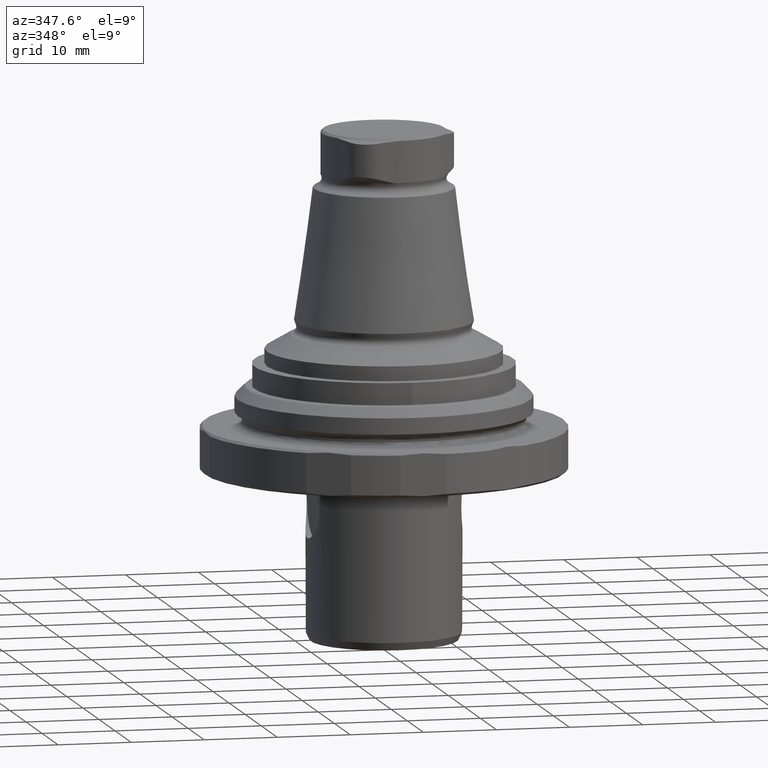
[diagram: clean part render]
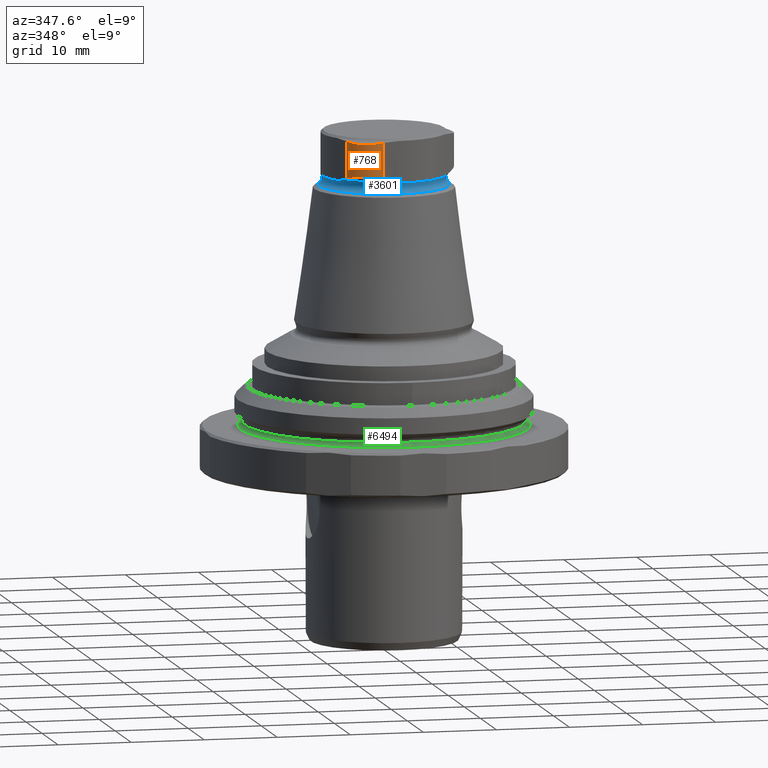
[diagram: same view with three faces highlighted in distinct colors, each labeled with its STEP entity id]
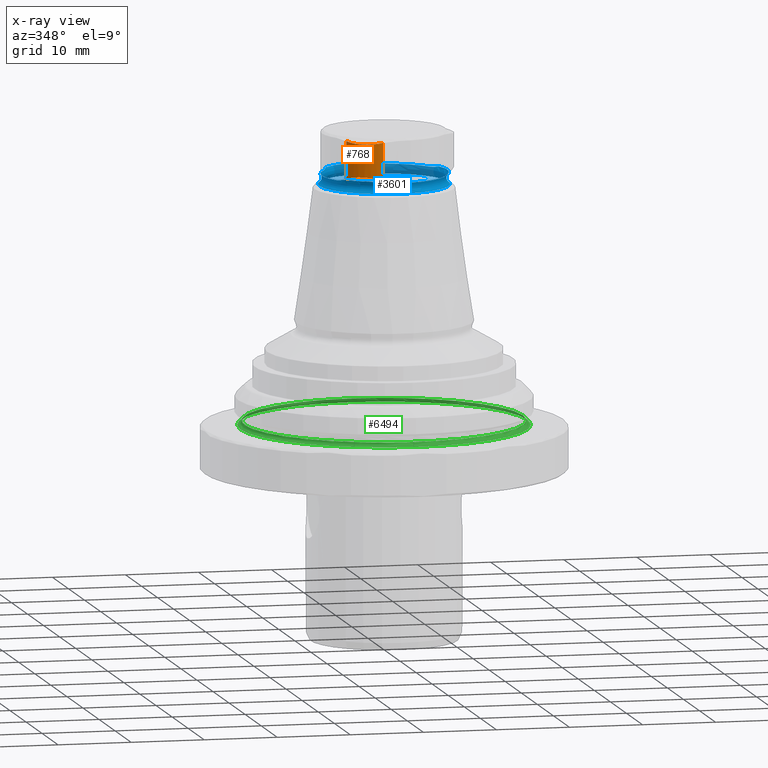
[diagram: x-ray of the same camera — body ghosted, the three highlighted faces saturated]
A machine part, auxiliary view with three faces highlighted in distinct colors.
The next image is the same camera in x-ray (body ghosted, the three faces saturated) — at least one of them is partly hidden behind the body in this view.
Their STEP definitions:

[orange] entity #768 — the highlighted cylindrical surface (edge-blend (fillet) strip) has radius 4 mm, axis along (0, 0, 1).
#768 = ADVANCED_FACE('',(#769),#783,.T.);
#769 = FACE_BOUND('',#770,.T.);
#770 = EDGE_LOOP('',(#771,#804,#878,#904));
#771 = ORIENTED_EDGE('',*,*,#772,.T.);
#772 = EDGE_CURVE('',#773,#775,#777,.T.);
#773 = VERTEX_POINT('',#774);
#774 = CARTESIAN_POINT('',(-2.047215769294,-8.700917561814,
    33.41701266703));
#775 = VERTEX_POINT('',#776);
#776 = CARTESIAN_POINT('',(-2.047215769294,-8.700917561814,
    38.540393421327));
#777 = SURFACE_CURVE('',#778,(#782,#793),.PCURVE_S1.);
#778 = LINE('',#779,#780);
#779 = CARTESIAN_POINT('',(-2.047215769294,-8.700917561814,
    32.291458783606));
#780 = VECTOR('',#781,1.);
#781 = DIRECTION('',(0.E+000,0.E+000,1.));
#782 = PCURVE('',#783,#788);
#783 = CYLINDRICAL_SURFACE('',#784,4.);
#784 = AXIS2_PLACEMENT_3D('',#785,#786,#787);
#785 = CARTESIAN_POINT('',(-2.750000000001,-4.763139720814,
    32.291458783606));
#786 = DIRECTION('',(0.E+000,0.E+000,1.));
#787 = DIRECTION('',(1.,-3.347474207549E-017,0.E+000));
#788 = DEFINITIONAL_REPRESENTATION('',(#789),#792);
#789 = B_SPLINE_CURVE_WITH_KNOTS('',1,(#790,#791),.UNSPECIFIED.,.F.,.F.,
  (2,2),(1.125553883424,6.248934637721),.PIECEWISE_BEZIER_KNOTS.);
#790 = CARTESIAN_POINT('',(4.889001760321,1.125553883424));
#791 = CARTESIAN_POINT('',(4.889001760321,6.248934637721));
#792 = ( GEOMETRIC_REPRESENTATION_CONTEXT(2) 
PARAMETRIC_REPRESENTATION_CONTEXT() REPRESENTATION_CONTEXT('2D SPACE',''
  ) );
#793 = PCURVE('',#794,#799);
#794 = CYLINDRICAL_SURFACE('',#795,13.);
#795 = AXIS2_PLACEMENT_3D('',#796,#797,#798);
#796 = CARTESIAN_POINT('',(0.236832980505,-21.49869554506,
    32.291458783606));
#797 = DIRECTION('',(0.E+000,0.E+000,1.));
#798 = DIRECTION('',(1.,-3.347474207549E-017,0.E+000));
#799 = DEFINITIONAL_REPRESENTATION('',(#800),#803);
#800 = B_SPLINE_CURVE_WITH_KNOTS('',1,(#801,#802),.UNSPECIFIED.,.F.,.F.,
  (2,2),(1.125553883424,6.248934637721),.PIECEWISE_BEZIER_KNOTS.);
#801 = CARTESIAN_POINT('',(1.747409106731,1.125553883424));
#802 = CARTESIAN_POINT('',(1.747409106731,6.248934637721));
#803 = ( GEOMETRIC_REPRESENTATION_CONTEXT(2) 
PARAMETRIC_REPRESENTATION_CONTEXT() REPRESENTATION_CONTEXT('2D SPACE',''
  ) );
#804 = ORIENTED_EDGE('',*,*,#805,.F.);
#805 = EDGE_CURVE('',#806,#775,#808,.T.);
#806 = VERTEX_POINT('',#807);
#807 = CARTESIAN_POINT('',(-6.511607760119,-6.123399644143,
    38.540393421327));
#808 = SURFACE_CURVE('',#809,(#815,#844),.PCURVE_S1.);
#809 = B_SPLINE_CURVE_WITH_KNOTS('',3,(#810,#811,#812,#813,#814),
  .UNSPECIFIED.,.F.,.F.,(4,1,4),(2.118675233273E-007,2.796321490313E-003
    ,5.592431113104E-003),.UNSPECIFIED.);
#810 = CARTESIAN_POINT('',(-6.511607760119,-6.123399644143,
    38.540393421327));
#811 = CARTESIAN_POINT('',(-6.19345102732,-7.003217401402,
    38.405377784303));
#812 = CARTESIAN_POINT('',(-4.92020584615,-8.519601778254,
    38.266685287833));
#813 = CARTESIAN_POINT('',(-2.9682866935,-8.865303199357,38.405370743534
    ));
#814 = CARTESIAN_POINT('',(-2.047215769294,-8.700917561814,
    38.540393421327));
#815 = PCURVE('',#783,#816);
#816 = DEFINITIONAL_REPRESENTATION('',(#817),#843);
#817 = B_SPLINE_CURVE_WITH_KNOTS('',3,(#818,#819,#820,#821,#822,#823,
    #824,#825,#826,#827,#828,#829,#830,#831,#832,#833,#834,#835,#836,
    #837,#838,#839,#840,#841,#842),.UNSPECIFIED.,.F.,.F.,(4,1,1,1,1,1,1,
    1,1,1,1,1,1,1,1,1,1,1,1,1,1,1,4),(2.118675233273E-007,
    2.544036514133E-004,5.085954353033E-004,7.627872191934E-004,
    1.016979003083E-003,1.271170786973E-003,1.525362570863E-003,
    1.779554354753E-003,2.033746138643E-003,2.287937922533E-003,
    2.542129706423E-003,2.796321490313E-003,3.050513274203E-003,
    3.304705058093E-003,3.558896841983E-003,3.813088625873E-003,
    4.067280409763E-003,4.321472193653E-003,4.575663977544E-003,
    4.829855761434E-003,5.084047545324E-003,5.338239329214E-003,
    5.592431113104E-003),.QUASI_UNIFORM_KNOTS.);
#818 = CARTESIAN_POINT('',(3.488578649252,6.248934637721));
#819 = CARTESIAN_POINT('',(3.509840266311,6.2366604889));
#820 = CARTESIAN_POINT('',(3.552344098151,6.213197635703));
#821 = CARTESIAN_POINT('',(3.616062766503,6.181276256173));
#822 = CARTESIAN_POINT('',(3.679771632222,6.152644343849));
#823 = CARTESIAN_POINT('',(3.743476449349,6.12731846567));
#824 = CARTESIAN_POINT('',(3.807173675476,6.105315188574));
#825 = CARTESIAN_POINT('',(3.870852318977,6.086651079501));
#826 = CARTESIAN_POINT('',(3.934498779614,6.071342705389));
#827 = CARTESIAN_POINT('',(3.99810101247,6.059406633177));
#828 = CARTESIAN_POINT('',(4.061652770768,6.050859429803));
#829 = CARTESIAN_POINT('',(4.125157987538,6.045717662207));
#830 = CARTESIAN_POINT('',(4.188633743014,6.043997897327));
#831 = CARTESIAN_POINT('',(4.252117504256,6.045716702102));
#832 = CARTESIAN_POINT('',(4.315643934899,6.050857557202));
#833 = CARTESIAN_POINT('',(4.379227065094,6.059403943296));
#834 = CARTESIAN_POINT('',(4.442867634284,6.071339341055));
#835 = CARTESIAN_POINT('',(4.506556165757,6.086647231147));
#836 = CARTESIAN_POINT('',(4.57027746155,6.105311094243));
#837 = CARTESIAN_POINT('',(4.634014961473,6.127314411012));
#838 = CARTESIAN_POINT('',(4.697755012641,6.152640662125));
#839 = CARTESIAN_POINT('',(4.76149183503,6.18127332825));
#840 = CARTESIAN_POINT('',(4.825229381049,6.213195890057));
#841 = CARTESIAN_POINT('',(4.86773908716,6.236659848831));
#842 = CARTESIAN_POINT('',(4.889001760321,6.248934637721));
#843 = ( GEOMETRIC_REPRESENTATION_CONTEXT(2) 
PARAMETRIC_REPRESENTATION_CONTEXT() REPRESENTATION_CONTEXT('2D SPACE',''
  ) );
#844 = PCURVE('',#845,#850);
#845 = CONICAL_SURFACE('',#846,9.55,1.221730476396);
#846 = AXIS2_PLACEMENT_3D('',#847,#848,#849);
#847 = CARTESIAN_POINT('',(2.888894916581E-031,-9.089951014118E-016,
    38.31783125402));
#848 = DIRECTION('',(0.E+000,0.E+000,-1.));
#849 = DIRECTION('',(-1.,3.347474207549E-017,0.E+000));
#850 = DEFINITIONAL_REPRESENTATION('',(#851),#877);
#851 = B_SPLINE_CURVE_WITH_KNOTS('',3,(#852,#853,#854,#855,#856,#857,
    #858,#859,#860,#861,#862,#863,#864,#865,#866,#867,#868,#869,#870,
    #871,#872,#873,#874,#875,#876),.UNSPECIFIED.,.F.,.F.,(4,1,1,1,1,1,1,
    1,1,1,1,1,1,1,1,1,1,1,1,1,1,1,4),(2.118675233273E-007,
    2.544036514133E-004,5.085954353033E-004,7.627872191934E-004,
    1.016979003083E-003,1.271170786973E-003,1.525362570863E-003,
    1.779554354753E-003,2.033746138643E-003,2.287937922533E-003,
    2.542129706423E-003,2.796321490313E-003,3.050513274203E-003,
    3.304705058093E-003,3.558896841983E-003,3.813088625873E-003,
    4.067280409763E-003,4.321472193653E-003,4.575663977544E-003,
    4.829855761434E-003,5.084047545324E-003,5.338239329214E-003,
    5.592431113104E-003),.QUASI_UNIFORM_KNOTS.);
#852 = CARTESIAN_POINT('',(5.528502284249,-0.222562167306));
#853 = CARTESIAN_POINT('',(5.519766898482,-0.210289507197));
#854 = CARTESIAN_POINT('',(5.502254351186,-0.186882943583));
#855 = CARTESIAN_POINT('',(5.475876925435,-0.15513713721));
#856 = CARTESIAN_POINT('',(5.449407791199,-0.12669610109));
#857 = CARTESIAN_POINT('',(5.422863236343,-0.101525199541));
#858 = CARTESIAN_POINT('',(5.396258749359,-7.960600428564E-002));
#859 = CARTESIAN_POINT('',(5.369608663639,-6.093848937325E-002));
#860 = CARTESIAN_POINT('',(5.342925839349,-4.554025613556E-002));
#861 = CARTESIAN_POINT('',(5.316221321725,-3.344642975935E-002));
#862 = CARTESIAN_POINT('',(5.289504007416,-2.470925521583E-002));
#863 = CARTESIAN_POINT('',(5.262780238064,-1.939764928869E-002));
#864 = CARTESIAN_POINT('',(5.23605359063,-1.759666770697E-002));
#865 = CARTESIAN_POINT('',(5.209323836312,-1.940681101316E-002));
#866 = CARTESIAN_POINT('',(5.182591860031,-2.472625457003E-002));
#867 = CARTESIAN_POINT('',(5.155862343582,-3.346903613162E-002));
#868 = CARTESIAN_POINT('',(5.12914272884,-4.556569006455E-002));
#869 = CARTESIAN_POINT('',(5.102443011128,-6.096379788746E-002));
#870 = CARTESIAN_POINT('',(5.075775335236,-7.962843089385E-002));
#871 = CARTESIAN_POINT('',(5.049153663878,-0.101542553559));
#872 = CARTESIAN_POINT('',(5.022593437868,-0.126707118847));
#873 = CARTESIAN_POINT('',(4.99611126107,-0.155141847159));
#874 = CARTESIAN_POINT('',(4.969724545337,-0.186882980752));
#875 = CARTESIAN_POINT('',(4.95220907068,-0.210288894089));
#876 = CARTESIAN_POINT('',(4.943473227718,-0.222562167306));
#877 = ( GEOMETRIC_REPRESENTATION_CONTEXT(2) 
PARAMETRIC_REPRESENTATION_CONTEXT() REPRESENTATION_CONTEXT('2D SPACE',''
  ) );
#878 = ORIENTED_EDGE('',*,*,#879,.F.);
#879 = EDGE_CURVE('',#880,#806,#882,.T.);
#880 = VERTEX_POINT('',#881);
#881 = CARTESIAN_POINT('',(-6.511607760119,-6.123399644143,
    33.41701266703));
#882 = SURFACE_CURVE('',#883,(#887,#893),.PCURVE_S1.);
#883 = LINE('',#884,#885);
#884 = CARTESIAN_POINT('',(-6.511607760119,-6.123399644143,
    32.291458783606));
#885 = VECTOR('',#886,1.);
#886 = DIRECTION('',(0.E+000,0.E+000,1.));
#887 = PCURVE('',#783,#888);
#888 = DEFINITIONAL_REPRESENTATION('',(#889),#892);
#889 = B_SPLINE_CURVE_WITH_KNOTS('',1,(#890,#891),.UNSPECIFIED.,.F.,.F.,
  (2,2),(1.125553883424,6.248934637721),.PIECEWISE_BEZIER_KNOTS.);
#890 = CARTESIAN_POINT('',(3.488578649252,1.125553883424));
#891 = CARTESIAN_POINT('',(3.488578649252,6.248934637721));
#892 = ( GEOMETRIC_REPRESENTATION_CONTEXT(2) 
PARAMETRIC_REPRESENTATION_CONTEXT() REPRESENTATION_CONTEXT('2D SPACE',''
  ) );
#893 = PCURVE('',#894,#899);
#894 = CYLINDRICAL_SURFACE('',#895,13.);
#895 = AXIS2_PLACEMENT_3D('',#896,#897,#898);
#896 = CARTESIAN_POINT('',(-18.7368329805,-10.54424439496,
    32.291458783606));
#897 = DIRECTION('',(0.E+000,0.E+000,1.));
#898 = DIRECTION('',(1.,-3.347474207549E-017,0.E+000));
#899 = DEFINITIONAL_REPRESENTATION('',(#900),#903);
#900 = B_SPLINE_CURVE_WITH_KNOTS('',1,(#901,#902),.UNSPECIFIED.,.F.,.F.,
  (2,2),(1.125553883424,6.248934637721),.PIECEWISE_BEZIER_KNOTS.);
#901 = CARTESIAN_POINT('',(0.346985995662,1.125553883424));
#902 = CARTESIAN_POINT('',(0.346985995662,6.248934637721));
#903 = ( GEOMETRIC_REPRESENTATION_CONTEXT(2) 
PARAMETRIC_REPRESENTATION_CONTEXT() REPRESENTATION_CONTEXT('2D SPACE',''
  ) );
#904 = ORIENTED_EDGE('',*,*,#905,.F.);
#905 = EDGE_CURVE('',#773,#880,#906,.T.);
#906 = SURFACE_CURVE('',#907,(#913,#942),.PCURVE_S1.);
#907 = B_SPLINE_CURVE_WITH_KNOTS('',3,(#908,#909,#910,#911,#912),
  .UNSPECIFIED.,.F.,.F.,(4,1,4),(2.112845525725E-007,2.837566116574E-003
    ,5.674920948595E-003),.UNSPECIFIED.);
#908 = CARTESIAN_POINT('',(-2.047215769294,-8.700917561814,
    33.41701266703));
#909 = CARTESIAN_POINT('',(-2.942490330206,-8.860699263314,
    33.71957687391));
#910 = CARTESIAN_POINT('',(-4.924114734096,-8.536688739964,
    34.056670749183));
#911 = CARTESIAN_POINT('',(-6.20222257085,-6.978960929793,
    33.719697133027));
#912 = CARTESIAN_POINT('',(-6.511607760119,-6.123399644143,
    33.41701266703));
#913 = PCURVE('',#783,#914);
#914 = DEFINITIONAL_REPRESENTATION('',(#915),#941);
#915 = B_SPLINE_CURVE_WITH_KNOTS('',3,(#916,#917,#918,#919,#920,#921,
    #922,#923,#924,#925,#926,#927,#928,#929,#930,#931,#932,#933,#934,
    #935,#936,#937,#938,#939,#940),.UNSPECIFIED.,.F.,.F.,(4,1,1,1,1,1,1,
    1,1,1,1,1,1,1,1,1,1,1,1,1,1,1,4),(2.112845525725E-007,
    2.581526329181E-004,5.160939812837E-004,7.740353296492E-004,
    1.031976678015E-003,1.28991802638E-003,1.547859374746E-003,
    1.805800723111E-003,2.063742071477E-003,2.321683419843E-003,
    2.579624768208E-003,2.837566116574E-003,3.095507464939E-003,
    3.353448813305E-003,3.61139016167E-003,3.869331510036E-003,
    4.127272858402E-003,4.385214206767E-003,4.643155555133E-003,
    4.901096903498E-003,5.159038251864E-003,5.416979600229E-003,
    5.674920948595E-003),.QUASI_UNIFORM_KNOTS.);
#916 = CARTESIAN_POINT('',(4.889001760321,1.125553883424));
#917 = CARTESIAN_POINT('',(4.868334851594,1.153059720413));
#918 = CARTESIAN_POINT('',(4.826839224008,1.205856232916));
#919 = CARTESIAN_POINT('',(4.764152480114,1.278249996868));
#920 = CARTESIAN_POINT('',(4.701057539173,1.343687235641));
#921 = CARTESIAN_POINT('',(4.637614085126,1.402012428859));
#922 = CARTESIAN_POINT('',(4.573890616151,1.453070056143));
#923 = CARTESIAN_POINT('',(4.509960826087,1.496704597117));
#924 = CARTESIAN_POINT('',(4.445896402415,1.532760531405));
#925 = CARTESIAN_POINT('',(4.381760665289,1.561082338628));
#926 = CARTESIAN_POINT('',(4.317602305896,1.581514498412));
#927 = CARTESIAN_POINT('',(4.253449010828,1.593901490377));
#928 = CARTESIAN_POINT('',(4.189303640576,1.598087794148));
#929 = CARTESIAN_POINT('',(4.12513325027,1.593917889348));
#930 = CARTESIAN_POINT('',(4.060913470635,1.581546483181));
#931 = CARTESIAN_POINT('',(3.996656484062,1.561128282852));
#932 = CARTESIAN_POINT('',(3.932399743881,1.532817995566));
#933 = CARTESIAN_POINT('',(3.868201820021,1.496770328528));
#934 = CARTESIAN_POINT('',(3.804135658811,1.453139988943));
#935 = CARTESIAN_POINT('',(3.740281941885,1.402081684015));
#936 = CARTESIAN_POINT('',(3.676722381785,1.34375012095));
#937 = CARTESIAN_POINT('',(3.613532134633,1.278300006952));
#938 = CARTESIAN_POINT('',(3.550776154737,1.205886049226));
#939 = CARTESIAN_POINT('',(3.509253616941,1.15307065306));
#940 = CARTESIAN_POINT('',(3.488578649252,1.125553883424));
#941 = ( GEOMETRIC_REPRESENTATION_CONTEXT(2) 
PARAMETRIC_REPRESENTATION_CONTEXT() REPRESENTATION_CONTEXT('2D SPACE',''
  ) );
#942 = PCURVE('',#943,#948);
#943 = CONICAL_SURFACE('',#944,8.707212390313,0.872664625997);
#944 = AXIS2_PLACEMENT_3D('',#945,#946,#947);
#945 = CARTESIAN_POINT('',(2.888894916581E-031,-9.089951014118E-016,
    33.222926337419));
#946 = DIRECTION('',(0.E+000,0.E+000,1.));
#947 = DIRECTION('',(1.,-3.347474207549E-017,0.E+000));
#948 = DEFINITIONAL_REPRESENTATION('',(#949),#975);
#949 = B_SPLINE_CURVE_WITH_KNOTS('',3,(#950,#951,#952,#953,#954,#955,
    #956,#957,#958,#959,#960,#961,#962,#963,#964,#965,#966,#967,#968,
    #969,#970,#971,#972,#973,#974),.UNSPECIFIED.,.F.,.F.,(4,1,1,1,1,1,1,
    1,1,1,1,1,1,1,1,1,1,1,1,1,1,1,4),(2.112845525725E-007,
    2.581526329181E-004,5.160939812837E-004,7.740353296492E-004,
    1.031976678015E-003,1.28991802638E-003,1.547859374746E-003,
    1.805800723111E-003,2.063742071477E-003,2.321683419843E-003,
    2.579624768208E-003,2.837566116574E-003,3.095507464939E-003,
    3.353448813305E-003,3.61139016167E-003,3.869331510036E-003,
    4.127272858402E-003,4.385214206767E-003,4.643155555133E-003,
    4.901096903498E-003,5.159038251864E-003,5.416979600229E-003,
    5.674920948595E-003),.QUASI_UNIFORM_KNOTS.);
#950 = CARTESIAN_POINT('',(4.481304733052,0.194086329611));
#951 = CARTESIAN_POINT('',(4.472813235607,0.221589074639));
#952 = CARTESIAN_POINT('',(4.455710121949,0.274271766849));
#953 = CARTESIAN_POINT('',(4.429744849243,0.346311720549));
#954 = CARTESIAN_POINT('',(4.403520324798,0.411366506296));
#955 = CARTESIAN_POINT('',(4.377082311727,0.46938391369));
#956 = CARTESIAN_POINT('',(4.350472866968,0.520278254335));
#957 = CARTESIAN_POINT('',(4.323729699995,0.56392603498));
#958 = CARTESIAN_POINT('',(4.296886135845,0.600167868569));
#959 = CARTESIAN_POINT('',(4.269970850026,0.628809045272));
#960 = CARTESIAN_POINT('',(4.243007637438,0.649620765271));
#961 = CARTESIAN_POINT('',(4.216015031991,0.662341497517));
#962 = CARTESIAN_POINT('',(4.189006254883,0.666678493313));
#963 = CARTESIAN_POINT('',(4.161987743373,0.662309762674));
#964 = CARTESIAN_POINT('',(4.134969355373,0.649563026687));
#965 = CARTESIAN_POINT('',(4.107967694224,0.628734770593));
#966 = CARTESIAN_POINT('',(4.081004654341,0.600088548949));
#967 = CARTESIAN_POINT('',(4.054107380202,0.563853385523));
#968 = CARTESIAN_POINT('',(4.027307893265,0.520222440736));
#969 = CARTESIAN_POINT('',(4.000642865843,0.46935178753));
#970 = CARTESIAN_POINT('',(3.97415335953,0.411359888774));
#971 = CARTESIAN_POINT('',(3.947884794314,0.346325689169));
#972 = CARTESIAN_POINT('',(3.921886308944,0.274293194012));
#973 = CARTESIAN_POINT('',(3.904770552592,0.221599888641));
#974 = CARTESIAN_POINT('',(3.896275676521,0.194086329611));
#975 = ( GEOMETRIC_REPRESENTATION_CONTEXT(2) 
PARAMETRIC_REPRESENTATION_CONTEXT() REPRESENTATION_CONTEXT('2D SPACE',''
  ) );

[blue] entity #3601 — the highlighted toroidal blend (fillet) surface has major radius 9.35 mm and minor (blend) radius 1 mm.
#794 = CYLINDRICAL_SURFACE('',#795,13.);
#795 = AXIS2_PLACEMENT_3D('',#796,#797,#798);
#796 = CARTESIAN_POINT('',(0.236832980505,-21.49869554506,
    32.291458783606));
#797 = DIRECTION('',(0.E+000,0.E+000,1.));
#798 = DIRECTION('',(1.,-3.347474207549E-017,0.E+000));
#894 = CYLINDRICAL_SURFACE('',#895,13.);
#895 = AXIS2_PLACEMENT_3D('',#896,#897,#898);
#896 = CARTESIAN_POINT('',(-18.7368329805,-10.54424439496,
    32.291458783606));
#897 = DIRECTION('',(0.E+000,0.E+000,1.));
#898 = DIRECTION('',(1.,-3.347474207549E-017,0.E+000));
#943 = CONICAL_SURFACE('',#944,8.707212390313,0.872664625997);
#944 = AXIS2_PLACEMENT_3D('',#945,#946,#947);
#945 = CARTESIAN_POINT('',(2.888894916581E-031,-9.089951014118E-016,
    33.222926337419));
#946 = DIRECTION('',(0.E+000,0.E+000,1.));
#947 = DIRECTION('',(1.,-3.347474207549E-017,0.E+000));
#1208 = CYLINDRICAL_SURFACE('',#1209,13.);
#1209 = AXIS2_PLACEMENT_3D('',#1210,#1211,#1212);
#1210 = CARTESIAN_POINT('',(18.499999999999,10.954451150103,
    32.291458783606));
#1211 = DIRECTION('',(0.E+000,0.E+000,1.));
#1212 = DIRECTION('',(1.,-3.347474207549E-017,0.E+000));
#1308 = CYLINDRICAL_SURFACE('',#1309,13.);
#1309 = AXIS2_PLACEMENT_3D('',#1310,#1311,#1312);
#1310 = CARTESIAN_POINT('',(18.499999999999,-10.9544511501,
    32.291458783606));
#1311 = DIRECTION('',(0.E+000,0.E+000,1.));
#1312 = DIRECTION('',(1.,-3.347474207549E-017,0.E+000));
#1357 = CONICAL_SURFACE('',#1358,8.707212390313,0.872664625997);
#1358 = AXIS2_PLACEMENT_3D('',#1359,#1360,#1361);
#1359 = CARTESIAN_POINT('',(2.888894916581E-031,-9.089951014118E-016,
    33.222926337419));
#1360 = DIRECTION('',(0.E+000,0.E+000,1.));
#1361 = DIRECTION('',(1.,-3.347474207549E-017,0.E+000));
#1622 = CYLINDRICAL_SURFACE('',#1623,13.);
#1623 = AXIS2_PLACEMENT_3D('',#1624,#1625,#1626);
#1624 = CARTESIAN_POINT('',(-18.7368329805,10.544244394961,
    32.291458783606));
#1625 = DIRECTION('',(0.E+000,0.E+000,1.));
#1626 = DIRECTION('',(1.,-3.347474207549E-017,0.E+000));
#1722 = CYLINDRICAL_SURFACE('',#1723,13.);
#1723 = AXIS2_PLACEMENT_3D('',#1724,#1725,#1726);
#1724 = CARTESIAN_POINT('',(0.236832980505,21.498695545064,
    32.291458783606));
#1725 = DIRECTION('',(0.E+000,0.E+000,1.));
#1726 = DIRECTION('',(1.,-3.347474207549E-017,0.E+000));
#1771 = CONICAL_SURFACE('',#1772,8.707212390313,0.872664625997);
#1772 = AXIS2_PLACEMENT_3D('',#1773,#1774,#1775);
#1773 = CARTESIAN_POINT('',(2.888894916581E-031,-9.089951014118E-016,
    33.222926337419));
#1774 = DIRECTION('',(0.E+000,0.E+000,1.));
#1775 = DIRECTION('',(1.,-3.347474207549E-017,0.E+000));
#2074 = CYLINDRICAL_SURFACE('',#2075,8.5);
#2075 = AXIS2_PLACEMENT_3D('',#2076,#2077,#2078);
#2076 = CARTESIAN_POINT('',(1.084202172485E-016,5.122700466752E-016,
    32.291458783606));
#2077 = DIRECTION('',(0.E+000,0.E+000,1.));
#2078 = DIRECTION('',(1.,-3.347474207549E-017,0.E+000));
#2123 = CYLINDRICAL_SURFACE('',#2124,8.5);
#2124 = AXIS2_PLACEMENT_3D('',#2125,#2126,#2127);
#2125 = CARTESIAN_POINT('',(-5.639875055241E-013,3.694515562823E-014,
    32.291458783606));
#2126 = DIRECTION('',(0.E+000,0.E+000,1.));
#2127 = DIRECTION('',(1.,-3.347474207549E-017,0.E+000));
#2172 = CYLINDRICAL_SURFACE('',#2173,8.5);
#2173 = AXIS2_PLACEMENT_3D('',#2174,#2175,#2176);
#2174 = CARTESIAN_POINT('',(-5.638963270764E-013,-6.047752573785E-013,
    32.291458783606));
#2175 = DIRECTION('',(0.E+000,0.E+000,1.));
#2176 = DIRECTION('',(1.,-3.347474207549E-017,0.E+000));
#2232 = VERTEX_POINT('',#2233);
#2233 = CARTESIAN_POINT('',(-6.760897647289,-5.486876216292,
    33.222926337419));
#2299 = EDGE_CURVE('',#2232,#2300,#2302,.T.);
#2300 = VERTEX_POINT('',#2301);
#2301 = CARTESIAN_POINT('',(-7.407585131828,-4.168654760798,
    32.983664581943));
#2302 = SURFACE_CURVE('',#2303,(#2308,#2337),.PCURVE_S1.);
#2303 = B_SPLINE_CURVE_WITH_KNOTS('',3,(#2304,#2305,#2306,#2307),
  .UNSPECIFIED.,.F.,.F.,(4,4),(8.757176710368E-007,1.488544596902E-003),
  .PIECEWISE_BEZIER_KNOTS.);
#2304 = CARTESIAN_POINT('',(-6.760897647289,-5.486876216292,
    33.222926337419));
#2305 = CARTESIAN_POINT('',(-6.949478023423,-5.040314623402,
    33.109668906194));
#2306 = CARTESIAN_POINT('',(-7.160783478269,-4.607214527514,
    32.983664581943));
#2307 = CARTESIAN_POINT('',(-7.407585131828,-4.168654760798,
    32.983664581943));
#2308 = PCURVE('',#894,#2309);
#2309 = DEFINITIONAL_REPRESENTATION('',(#2310),#2336);
#2310 = B_SPLINE_CURVE_WITH_KNOTS('',3,(#2311,#2312,#2313,#2314,#2315,
    #2316,#2317,#2318,#2319,#2320,#2321,#2322,#2323,#2324,#2325,#2326,
    #2327,#2328,#2329,#2330,#2331,#2332,#2333,#2334,#2335),
  .UNSPECIFIED.,.F.,.F.,(4,1,1,1,1,1,1,1,1,1,1,1,1,1,1,1,1,1,1,1,1,1,4),
  (8.757176710368E-007,6.849703036338E-005,1.361183430557E-004,
    2.037396557481E-004,2.713609684404E-004,3.389822811327E-004,
    4.066035938251E-004,4.742249065174E-004,5.418462192097E-004,
    6.094675319021E-004,6.770888445944E-004,7.447101572868E-004,
    8.123314699791E-004,8.799527826714E-004,9.475740953638E-004,
    1.015195408056E-003,1.082816720748E-003,1.150438033441E-003,
    1.218059346133E-003,1.285680658825E-003,1.353301971518E-003,
    1.42092328421E-003,1.488544596902E-003),.QUASI_UNIFORM_KNOTS.);
#2311 = CARTESIAN_POINT('',(0.399576590497,0.931467553813));
#2312 = CARTESIAN_POINT('',(0.401271510997,0.926319488757));
#2313 = CARTESIAN_POINT('',(0.404660218979,0.915970685534));
#2314 = CARTESIAN_POINT('',(0.409740977233,0.900367645747));
#2315 = CARTESIAN_POINT('',(0.414820525558,0.884762955389));
#2316 = CARTESIAN_POINT('',(0.419899963131,0.869234798844));
#2317 = CARTESIAN_POINT('',(0.424980392304,0.853861360493));
#2318 = CARTESIAN_POINT('',(0.430062918855,0.83872082472));
#2319 = CARTESIAN_POINT('',(0.435148651572,0.823891375905));
#2320 = CARTESIAN_POINT('',(0.440238702026,0.809451198432));
#2321 = CARTESIAN_POINT('',(0.445334184297,0.795478476683));
#2322 = CARTESIAN_POINT('',(0.450436214701,0.782051395041));
#2323 = CARTESIAN_POINT('',(0.455545911531,0.769248137887));
#2324 = CARTESIAN_POINT('',(0.460664394782,0.757146889605));
#2325 = CARTESIAN_POINT('',(0.465792785882,0.745825834576));
#2326 = CARTESIAN_POINT('',(0.47093220742,0.735363157183));
#2327 = CARTESIAN_POINT('',(0.476083782861,0.725837041809));
#2328 = CARTESIAN_POINT('',(0.48124863627,0.717325672835));
#2329 = CARTESIAN_POINT('',(0.486427892018,0.709907234645));
#2330 = CARTESIAN_POINT('',(0.491622674486,0.70365991162));
#2331 = CARTESIAN_POINT('',(0.496834107772,0.698661888143));
#2332 = CARTESIAN_POINT('',(0.502063315329,0.694991348597));
#2333 = CARTESIAN_POINT('',(0.507311419839,0.692726477363));
#2334 = CARTESIAN_POINT('',(0.510823501381,0.692205798337));
#2335 = CARTESIAN_POINT('',(0.512583065349,0.692205798337));
#2336 = ( GEOMETRIC_REPRESENTATION_CONTEXT(2) 
PARAMETRIC_REPRESENTATION_CONTEXT() REPRESENTATION_CONTEXT('2D SPACE',''
  ) );
#2337 = PCURVE('',#2338,#2343);
#2338 = TOROIDAL_SURFACE('',#2339,9.35,1.);
#2339 = AXIS2_PLACEMENT_3D('',#2340,#2341,#2342);
#2340 = CARTESIAN_POINT('',(2.888894916581E-031,-9.089951014118E-016,
    32.4568818943));
#2341 = DIRECTION('',(0.E+000,0.E+000,-1.));
#2342 = DIRECTION('',(-1.,3.347474207549E-017,0.E+000));
#2343 = DEFINITIONAL_REPRESENTATION('',(#2344),#2370);
#2344 = B_SPLINE_CURVE_WITH_KNOTS('',3,(#2345,#2346,#2347,#2348,#2349,
    #2350,#2351,#2352,#2353,#2354,#2355,#2356,#2357,#2358,#2359,#2360,
    #2361,#2362,#2363,#2364,#2365,#2366,#2367,#2368,#2369),
  .UNSPECIFIED.,.F.,.F.,(4,1,1,1,1,1,1,1,1,1,1,1,1,1,1,1,1,1,1,1,1,1,4),
  (8.757176710368E-007,6.849703036338E-005,1.361183430557E-004,
    2.037396557481E-004,2.713609684404E-004,3.389822811327E-004,
    4.066035938251E-004,4.742249065174E-004,5.418462192097E-004,
    6.094675319021E-004,6.770888445944E-004,7.447101572868E-004,
    8.123314699791E-004,8.799527826714E-004,9.475740953638E-004,
    1.015195408056E-003,1.082816720748E-003,1.150438033441E-003,
    1.218059346133E-003,1.285680658825E-003,1.353301971518E-003,
    1.42092328421E-003,1.488544596902E-003),.QUASI_UNIFORM_KNOTS.);
#2345 = CARTESIAN_POINT('',(5.601435035413,10.297442586767));
#2346 = CARTESIAN_POINT('',(5.603865498429,10.289433931021));
#2347 = CARTESIAN_POINT('',(5.608738541947,10.27358248077));
#2348 = CARTESIAN_POINT('',(5.61608453932,10.250344045369));
#2349 = CARTESIAN_POINT('',(5.623467056966,10.22768412082));
#2350 = CARTESIAN_POINT('',(5.630886153189,10.205647326846));
#2351 = CARTESIAN_POINT('',(5.638341865465,10.184281018304));
#2352 = CARTESIAN_POINT('',(5.645834206782,10.163635422977));
#2353 = CARTESIAN_POINT('',(5.653363165389,10.143763197844));
#2354 = CARTESIAN_POINT('',(5.660928703648,10.124719170041));
#2355 = CARTESIAN_POINT('',(5.668530757148,10.106560063846));
#2356 = CARTESIAN_POINT('',(5.676169233759,10.089344272623));
#2357 = CARTESIAN_POINT('',(5.683844012738,10.073131664176));
#2358 = CARTESIAN_POINT('',(5.691554943837,10.057983425014));
#2359 = CARTESIAN_POINT('',(5.699301846454,10.043961942101));
#2360 = CARTESIAN_POINT('',(5.707084508798,10.031130719896));
#2361 = CARTESIAN_POINT('',(5.714902687091,10.019554327562));
#2362 = CARTESIAN_POINT('',(5.722756104805,10.009298368683));
#2363 = CARTESIAN_POINT('',(5.730644451955,10.000429462508));
#2364 = CARTESIAN_POINT('',(5.738567384325,9.993015223217));
#2365 = CARTESIAN_POINT('',(5.746524523163,9.987124216951));
#2366 = CARTESIAN_POINT('',(5.754515453337,9.98282588374));
#2367 = CARTESIAN_POINT('',(5.762539727452,9.980190364452));
#2368 = CARTESIAN_POINT('',(5.767911141128,9.979589006266));
#2369 = CARTESIAN_POINT('',(5.77060224183,9.97958899375));
#2370 = ( GEOMETRIC_REPRESENTATION_CONTEXT(2) 
PARAMETRIC_REPRESENTATION_CONTEXT() REPRESENTATION_CONTEXT('2D SPACE',''
  ) );
#2398 = EDGE_CURVE('',#2399,#2232,#2401,.T.);
#2399 = VERTEX_POINT('',#2400);
#2400 = CARTESIAN_POINT('',(-1.371325367088,-8.598547223084,
    33.222926337419));
#2401 = SURFACE_CURVE('',#2402,(#2407,#2436),.PCURVE_S1.);
#2402 = CIRCLE('',#2403,8.707212390313);
#2403 = AXIS2_PLACEMENT_3D('',#2404,#2405,#2406);
#2404 = CARTESIAN_POINT('',(2.888894916581E-031,-9.089951014118E-016,
    33.222926337419));
#2405 = DIRECTION('',(0.E+000,0.E+000,-1.));
#2406 = DIRECTION('',(-1.,3.347474207549E-017,0.E+000));
#2407 = PCURVE('',#943,#2408);
#2408 = DEFINITIONAL_REPRESENTATION('',(#2409),#2435);
#2409 = B_SPLINE_CURVE_WITH_KNOTS('',3,(#2410,#2411,#2412,#2413,#2414,
    #2415,#2416,#2417,#2418,#2419,#2420,#2421,#2422,#2423,#2424,#2425,
    #2426,#2427,#2428,#2429,#2430,#2431,#2432,#2433,#2434),
  .UNSPECIFIED.,.F.,.F.,(4,1,1,1,1,1,1,1,1,1,1,1,1,1,1,1,1,1,1,1,1,1,4),
  (4.870540476554,4.903762956502,4.93698543645,4.970207916398,
    5.003430396346,5.036652876294,5.069875356242,5.103097836191,
    5.136320316139,5.169542796087,5.202765276035,5.235987755983,
    5.269210235931,5.302432715879,5.335655195828,5.368877675776,
    5.402100155724,5.435322635672,5.46854511562,5.501767595568,
    5.534990075516,5.568212555465,5.601435035413),
  .QUASI_UNIFORM_KNOTS.);
#2410 = CARTESIAN_POINT('',(4.554237484216,8.746849937788E-016));
#2411 = CARTESIAN_POINT('',(4.543163324233,3.401552753584E-016));
#2412 = CARTESIAN_POINT('',(4.521015004268,-1.891053792762E-016));
#2413 = CARTESIAN_POINT('',(4.48779252432,1.51635914429E-016));
#2414 = CARTESIAN_POINT('',(4.454570044371,-4.1743827844E-016));
#2415 = CARTESIAN_POINT('',(4.421347564423,1.518117199331E-015));
#2416 = CARTESIAN_POINT('',(4.388125084475,-4.069205562106E-016));
#2417 = CARTESIAN_POINT('',(4.354902604527,1.095650255116E-016));
#2418 = CARTESIAN_POINT('',(4.321680124579,-3.133954583566E-017));
#2419 = CARTESIAN_POINT('',(4.288457644631,1.579315783108E-017));
#2420 = CARTESIAN_POINT('',(4.255235164683,-3.183308548866E-017));
#2421 = CARTESIAN_POINT('',(4.222012684734,1.115391841236E-016));
#2422 = CARTESIAN_POINT('',(4.188790204786,-4.143236510056E-016));
#2423 = CARTESIAN_POINT('',(4.155567724838,1.545755419899E-015));
#2424 = CARTESIAN_POINT('',(4.12234524489,-5.205880659169E-016));
#2425 = CARTESIAN_POINT('',(4.089122764942,5.365968437689E-016));
#2426 = CARTESIAN_POINT('',(4.055900284994,-1.625799309159E-015));
#2427 = CARTESIAN_POINT('',(4.022677805046,7.184904301923E-016));
#2428 = CARTESIAN_POINT('',(3.989455325097,-1.248162411611E-015));
#2429 = CARTESIAN_POINT('',(3.956232845149,-9.739507464226E-016));
#2430 = CARTESIAN_POINT('',(3.923010365201,-1.041445653717E-016));
#2431 = CARTESIAN_POINT('',(3.889787885253,1.390529007909E-015));
#2432 = CARTESIAN_POINT('',(3.856565405305,-2.098615035929E-016));
#2433 = CARTESIAN_POINT('',(3.834417085339,-4.373424968894E-016));
#2434 = CARTESIAN_POINT('',(3.823342925357,0.E+000));
#2435 = ( GEOMETRIC_REPRESENTATION_CONTEXT(2) 
PARAMETRIC_REPRESENTATION_CONTEXT() REPRESENTATION_CONTEXT('2D SPACE',''
  ) );
#2436 = PCURVE('',#2338,#2437);
#2437 = DEFINITIONAL_REPRESENTATION('',(#2438),#2464);
#2438 = B_SPLINE_CURVE_WITH_KNOTS('',3,(#2439,#2440,#2441,#2442,#2443,
    #2444,#2445,#2446,#2447,#2448,#2449,#2450,#2451,#2452,#2453,#2454,
    #2455,#2456,#2457,#2458,#2459,#2460,#2461,#2462,#2463),
  .UNSPECIFIED.,.F.,.F.,(4,1,1,1,1,1,1,1,1,1,1,1,1,1,1,1,1,1,1,1,1,1,4),
  (4.870540476554,4.903762956502,4.93698543645,4.970207916398,
    5.003430396346,5.036652876294,5.069875356242,5.103097836191,
    5.136320316139,5.169542796087,5.202765276035,5.235987755983,
    5.269210235931,5.302432715879,5.335655195828,5.368877675776,
    5.402100155724,5.435322635672,5.46854511562,5.501767595568,
    5.534990075516,5.568212555465,5.601435035413),
  .QUASI_UNIFORM_KNOTS.);
#2439 = CARTESIAN_POINT('',(4.870540476554,10.297442586767));
#2440 = CARTESIAN_POINT('',(4.881614636536,10.297442586767));
#2441 = CARTESIAN_POINT('',(4.903762956502,10.297442586767));
#2442 = CARTESIAN_POINT('',(4.93698543645,10.297442586767));
#2443 = CARTESIAN_POINT('',(4.970207916398,10.297442586767));
#2444 = CARTESIAN_POINT('',(5.003430396346,10.297442586767));
#2445 = CARTESIAN_POINT('',(5.036652876294,10.297442586767));
#2446 = CARTESIAN_POINT('',(5.069875356242,10.297442586767));
#2447 = CARTESIAN_POINT('',(5.103097836191,10.297442586767));
#2448 = CARTESIAN_POINT('',(5.136320316139,10.297442586767));
#2449 = CARTESIAN_POINT('',(5.169542796087,10.297442586767));
#2450 = CARTESIAN_POINT('',(5.202765276035,10.297442586767));
#2451 = CARTESIAN_POINT('',(5.235987755983,10.297442586767));
#2452 = CARTESIAN_POINT('',(5.269210235931,10.297442586767));
#2453 = CARTESIAN_POINT('',(5.302432715879,10.297442586767));
#2454 = CARTESIAN_POINT('',(5.335655195828,10.297442586767));
#2455 = CARTESIAN_POINT('',(5.368877675776,10.297442586767));
#2456 = CARTESIAN_POINT('',(5.402100155724,10.297442586767));
#2457 = CARTESIAN_POINT('',(5.435322635672,10.297442586767));
#2458 = CARTESIAN_POINT('',(5.46854511562,10.297442586767));
#2459 = CARTESIAN_POINT('',(5.501767595568,10.297442586767));
#2460 = CARTESIAN_POINT('',(5.534990075516,10.297442586767));
#2461 = CARTESIAN_POINT('',(5.568212555465,10.297442586767));
#2462 = CARTESIAN_POINT('',(5.59036087543,10.297442586767));
#2463 = CARTESIAN_POINT('',(5.601435035413,10.297442586767));
#2464 = ( GEOMETRIC_REPRESENTATION_CONTEXT(2) 
PARAMETRIC_REPRESENTATION_CONTEXT() REPRESENTATION_CONTEXT('2D SPACE',''
  ) );
#2536 = VERTEX_POINT('',#2537);
#2537 = CARTESIAN_POINT('',(9.363164345494E-002,-8.499484285258,
    32.983664581942));
#2556 = EDGE_CURVE('',#2536,#2399,#2557,.T.);
#2557 = SURFACE_CURVE('',#2558,(#2563,#2592),.PCURVE_S1.);
#2558 = B_SPLINE_CURVE_WITH_KNOTS('',3,(#2559,#2560,#2561,#2562),
  .UNSPECIFIED.,.F.,.F.,(4,4),(1.970913676724E-007,1.487865970479E-003),
  .PIECEWISE_BEZIER_KNOTS.);
#2559 = CARTESIAN_POINT('',(9.363164345493E-002,-8.499484285258,
    32.983664581942));
#2560 = CARTESIAN_POINT('',(-0.409573375546,-8.505027670167,
    32.983664581942));
#2561 = CARTESIAN_POINT('',(-0.890301629709,-8.538581839792,
    33.109668937859));
#2562 = CARTESIAN_POINT('',(-1.371325367088,-8.598547223084,
    33.222926337419));
#2563 = PCURVE('',#794,#2564);
#2564 = DEFINITIONAL_REPRESENTATION('',(#2565),#2591);
#2565 = B_SPLINE_CURVE_WITH_KNOTS('',3,(#2566,#2567,#2568,#2569,#2570,
    #2571,#2572,#2573,#2574,#2575,#2576,#2577,#2578,#2579,#2580,#2581,
    #2582,#2583,#2584,#2585,#2586,#2587,#2588,#2589,#2590),
  .UNSPECIFIED.,.F.,.F.,(4,1,1,1,1,1,1,1,1,1,1,1,1,1,1,1,1,1,1,1,1,1,4),
  (1.970913676724E-007,6.781840405456E-005,1.354397167415E-004,
    2.030610294283E-004,2.706823421152E-004,3.383036548021E-004,
    4.05924967489E-004,4.735462801759E-004,5.411675928628E-004,
    6.087889055497E-004,6.764102182366E-004,7.440315309235E-004,
    8.116528436103E-004,8.792741562972E-004,9.468954689841E-004,
    1.014516781671E-003,1.082138094358E-003,1.149759407045E-003,
    1.217380719732E-003,1.285002032419E-003,1.352623345105E-003,
    1.420244657792E-003,1.487865970479E-003),.QUASI_UNIFORM_KNOTS.);
#2566 = CARTESIAN_POINT('',(1.581812037044,0.692205798336));
#2567 = CARTESIAN_POINT('',(1.583571602037,0.692205798336));
#2568 = CARTESIAN_POINT('',(1.587083685486,0.692726477493));
#2569 = CARTESIAN_POINT('',(1.592331792446,0.694991349262));
#2570 = CARTESIAN_POINT('',(1.597561002063,0.698661889629));
#2571 = CARTESIAN_POINT('',(1.602772437041,0.703659914159));
#2572 = CARTESIAN_POINT('',(1.607967220851,0.709907238415));
#2573 = CARTESIAN_POINT('',(1.613146477615,0.717325677962));
#2574 = CARTESIAN_POINT('',(1.618311331733,0.725837048363));
#2575 = CARTESIAN_POINT('',(1.623462907597,0.735363165182));
#2576 = CARTESIAN_POINT('',(1.628602329292,0.745825843985));
#2577 = CARTESIAN_POINT('',(1.633730720304,0.757146900334));
#2578 = CARTESIAN_POINT('',(1.638849203243,0.769248149794));
#2579 = CARTESIAN_POINT('',(1.643958899557,0.782051407929));
#2580 = CARTESIAN_POINT('',(1.649060929262,0.795478490303));
#2581 = CARTESIAN_POINT('',(1.65415641067,0.80945121248));
#2582 = CARTESIAN_POINT('',(1.659246460121,0.823891390024));
#2583 = CARTESIAN_POINT('',(1.664332191712,0.8387208385));
#2584 = CARTESIAN_POINT('',(1.669414717036,0.853861373471));
#2585 = CARTESIAN_POINT('',(1.674495144901,0.869234810501));
#2586 = CARTESIAN_POINT('',(1.679574581104,0.884762965155));
#2587 = CARTESIAN_POINT('',(1.684654128019,0.900367652997));
#2588 = CARTESIAN_POINT('',(1.689734884842,0.91597068959));
#2589 = CARTESIAN_POINT('',(1.69312359187,0.926319490196));
#2590 = CARTESIAN_POINT('',(1.694818511896,0.931467553813));
#2591 = ( GEOMETRIC_REPRESENTATION_CONTEXT(2) 
PARAMETRIC_REPRESENTATION_CONTEXT() REPRESENTATION_CONTEXT('2D SPACE',''
  ) );
#2592 = PCURVE('',#2338,#2593);
#2593 = DEFINITIONAL_REPRESENTATION('',(#2594),#2620);
#2594 = B_SPLINE_CURVE_WITH_KNOTS('',3,(#2595,#2596,#2597,#2598,#2599,
    #2600,#2601,#2602,#2603,#2604,#2605,#2606,#2607,#2608,#2609,#2610,
    #2611,#2612,#2613,#2614,#2615,#2616,#2617,#2618,#2619),
  .UNSPECIFIED.,.F.,.F.,(4,1,1,1,1,1,1,1,1,1,1,1,1,1,1,1,1,1,1,1,1,1,4),
  (1.970913676724E-007,6.781840405456E-005,1.354397167415E-004,
    2.030610294283E-004,2.706823421152E-004,3.383036548021E-004,
    4.05924967489E-004,4.735462801759E-004,5.411675928628E-004,
    6.087889055497E-004,6.764102182366E-004,7.440315309235E-004,
    8.116528436103E-004,8.792741562972E-004,9.468954689841E-004,
    1.014516781671E-003,1.082138094358E-003,1.149759407045E-003,
    1.217380719732E-003,1.285002032419E-003,1.352623345105E-003,
    1.420244657792E-003,1.487865970479E-003),.QUASI_UNIFORM_KNOTS.);
#2595 = CARTESIAN_POINT('',(4.701373270136,9.979588993749));
#2596 = CARTESIAN_POINT('',(4.704064372406,9.979589006266));
#2597 = CARTESIAN_POINT('',(4.709435788998,9.980190364708));
#2598 = CARTESIAN_POINT('',(4.717460066858,9.982825885028));
#2599 = CARTESIAN_POINT('',(4.725451000175,9.987124219796));
#2600 = CARTESIAN_POINT('',(4.733408141587,9.993015228031));
#2601 = CARTESIAN_POINT('',(4.741331075993,10.000429469596));
#2602 = CARTESIAN_POINT('',(4.749219424671,10.009298378243));
#2603 = CARTESIAN_POINT('',(4.757072843438,10.019554339691));
#2604 = CARTESIAN_POINT('',(4.764891022343,10.03113073459));
#2605 = CARTESIAN_POINT('',(4.772673684887,10.043961959256));
#2606 = CARTESIAN_POINT('',(4.780420587329,10.057983444428));
#2607 = CARTESIAN_POINT('',(4.78813151791,10.073131685552));
#2608 = CARTESIAN_POINT('',(4.79580629606,10.089344295569));
#2609 = CARTESIAN_POINT('',(4.803444771568,10.106560087879));
#2610 = CARTESIAN_POINT('',(4.811046823723,10.124719194592));
#2611 = CARTESIAN_POINT('',(4.818612360429,10.143763222262));
#2612 = CARTESIAN_POINT('',(4.826141317309,10.163635446536));
#2613 = CARTESIAN_POINT('',(4.833633656759,10.184281040212));
#2614 = CARTESIAN_POINT('',(4.841089367062,10.205647346253));
#2615 = CARTESIAN_POINT('',(4.848508461238,10.22768413683));
#2616 = CARTESIAN_POINT('',(4.855890976797,10.250344057051));
#2617 = CARTESIAN_POINT('',(4.863236972077,10.27358248717));
#2618 = CARTESIAN_POINT('',(4.868110014216,10.289433933262));
#2619 = CARTESIAN_POINT('',(4.870540476554,10.297442586767));
#2620 = ( GEOMETRIC_REPRESENTATION_CONTEXT(2) 
PARAMETRIC_REPRESENTATION_CONTEXT() REPRESENTATION_CONTEXT('2D SPACE',''
  ) );
#2629 = VERTEX_POINT('',#2630);
#2630 = CARTESIAN_POINT('',(7.313953488372,-4.330829524459,
    32.983664581941));
#2651 = EDGE_CURVE('',#2629,#2536,#2652,.T.);
#2652 = SURFACE_CURVE('',#2653,(#2658,#2664),.PCURVE_S1.);
#2653 = CIRCLE('',#2654,8.5);
#2654 = AXIS2_PLACEMENT_3D('',#2655,#2656,#2657);
#2655 = CARTESIAN_POINT('',(2.888894916581E-031,-9.089951014118E-016,
    32.983664581942));
#2656 = DIRECTION('',(0.E+000,0.E+000,-1.));
#2657 = DIRECTION('',(-1.,3.347474207549E-017,0.E+000));
#2658 = PCURVE('',#2123,#2659);
#2659 = DEFINITIONAL_REPRESENTATION('',(#2660),#2663);
#2660 = B_SPLINE_CURVE_WITH_KNOTS('',1,(#2661,#2662),.UNSPECIFIED.,.F.,
  .F.,(2,2),(3.676207139437,4.701373270136),.PIECEWISE_BEZIER_KNOTS.);
#2661 = CARTESIAN_POINT('',(5.748570821332,0.692205798336));
#2662 = CARTESIAN_POINT('',(4.723404690634,0.692205798336));
#2663 = ( GEOMETRIC_REPRESENTATION_CONTEXT(2) 
PARAMETRIC_REPRESENTATION_CONTEXT() REPRESENTATION_CONTEXT('2D SPACE',''
  ) );
#2664 = PCURVE('',#2338,#2665);
#2665 = DEFINITIONAL_REPRESENTATION('',(#2666),#2692);
#2666 = B_SPLINE_CURVE_WITH_KNOTS('',3,(#2667,#2668,#2669,#2670,#2671,
    #2672,#2673,#2674,#2675,#2676,#2677,#2678,#2679,#2680,#2681,#2682,
    #2683,#2684,#2685,#2686,#2687,#2688,#2689,#2690,#2691),
  .UNSPECIFIED.,.F.,.F.,(4,1,1,1,1,1,1,1,1,1,1,1,1,1,1,1,1,1,1,1,1,1,4),
  (3.676207139437,3.722805599924,3.76940406041,3.816002520896,
    3.862600981382,3.909199441869,3.955797902355,4.002396362841,
    4.048994823328,4.095593283814,4.1421917443,4.188790204786,
    4.235388665273,4.281987125759,4.328585586245,4.375184046732,
    4.421782507218,4.468380967704,4.51497942819,4.561577888677,
    4.608176349163,4.654774809649,4.701373270136),
  .QUASI_UNIFORM_KNOTS.);
#2667 = CARTESIAN_POINT('',(3.676207139437,9.97958899375));
#2668 = CARTESIAN_POINT('',(3.691739959599,9.97958899375));
#2669 = CARTESIAN_POINT('',(3.722805599924,9.97958899375));
#2670 = CARTESIAN_POINT('',(3.76940406041,9.97958899375));
#2671 = CARTESIAN_POINT('',(3.816002520896,9.97958899375));
#2672 = CARTESIAN_POINT('',(3.862600981382,9.97958899375));
#2673 = CARTESIAN_POINT('',(3.909199441869,9.97958899375));
#2674 = CARTESIAN_POINT('',(3.955797902355,9.97958899375));
#2675 = CARTESIAN_POINT('',(4.002396362841,9.97958899375));
#2676 = CARTESIAN_POINT('',(4.048994823328,9.97958899375));
#2677 = CARTESIAN_POINT('',(4.095593283814,9.97958899375));
#2678 = CARTESIAN_POINT('',(4.1421917443,9.97958899375));
#2679 = CARTESIAN_POINT('',(4.188790204786,9.97958899375));
#2680 = CARTESIAN_POINT('',(4.235388665273,9.97958899375));
#2681 = CARTESIAN_POINT('',(4.281987125759,9.97958899375));
#2682 = CARTESIAN_POINT('',(4.328585586245,9.97958899375));
#2683 = CARTESIAN_POINT('',(4.375184046732,9.97958899375));
#2684 = CARTESIAN_POINT('',(4.421782507218,9.97958899375));
#2685 = CARTESIAN_POINT('',(4.468380967704,9.97958899375));
#2686 = CARTESIAN_POINT('',(4.51497942819,9.97958899375));
#2687 = CARTESIAN_POINT('',(4.561577888677,9.97958899375));
#2688 = CARTESIAN_POINT('',(4.608176349163,9.97958899375));
#2689 = CARTESIAN_POINT('',(4.654774809649,9.97958899375));
#2690 = CARTESIAN_POINT('',(4.685840449973,9.97958899375));
#2691 = CARTESIAN_POINT('',(4.701373270136,9.97958899375));
#2692 = ( GEOMETRIC_REPRESENTATION_CONTEXT(2) 
PARAMETRIC_REPRESENTATION_CONTEXT() REPRESENTATION_CONTEXT('2D SPACE',''
  ) );
#2698 = VERTEX_POINT('',#2699);
#2699 = CARTESIAN_POINT('',(8.132223014375,-3.111671006789,
    33.222926337419));
#2765 = EDGE_CURVE('',#2698,#2629,#2766,.T.);
#2766 = SURFACE_CURVE('',#2767,(#2772,#2801),.PCURVE_S1.);
#2767 = B_SPLINE_CURVE_WITH_KNOTS('',3,(#2768,#2769,#2770,#2771),
  .UNSPECIFIED.,.F.,.F.,(4,4),(8.757176467176E-007,1.488544596893E-003),
  .PIECEWISE_BEZIER_KNOTS.);
#2768 = CARTESIAN_POINT('',(8.132223014375,-3.111671006789,
    33.222926337419));
#2769 = CARTESIAN_POINT('',(7.839779510504,-3.498267210384,
    33.109668903041));
#2770 = CARTESIAN_POINT('',(7.570356545773,-3.897813164541,
    32.983664581941));
#2771 = CARTESIAN_POINT('',(7.313953488372,-4.330829524459,
    32.983664581941));
#2772 = PCURVE('',#1308,#2773);
#2773 = DEFINITIONAL_REPRESENTATION('',(#2774),#2800);
#2774 = B_SPLINE_CURVE_WITH_KNOTS('',3,(#2775,#2776,#2777,#2778,#2779,
    #2780,#2781,#2782,#2783,#2784,#2785,#2786,#2787,#2788,#2789,#2790,
    #2791,#2792,#2793,#2794,#2795,#2796,#2797,#2798,#2799),
  .UNSPECIFIED.,.F.,.F.,(4,1,1,1,1,1,1,1,1,1,1,1,1,1,1,1,1,1,1,1,1,1,4),
  (8.757176467176E-007,6.849703033973E-005,1.361183430328E-004,
    2.037396557258E-004,2.713609684188E-004,3.389822811118E-004,
    4.066035938048E-004,4.742249064978E-004,5.418462191909E-004,
    6.094675318839E-004,6.770888445769E-004,7.447101572699E-004,
    8.123314699629E-004,8.799527826559E-004,9.47574095349E-004,
    1.015195408042E-003,1.082816720735E-003,1.150438033428E-003,
    1.218059346121E-003,1.285680658814E-003,1.353301971507E-003,
    1.4209232842E-003,1.488544596893E-003),.QUASI_UNIFORM_KNOTS.);
#2775 = CARTESIAN_POINT('',(2.49397169289,0.931467553813));
#2776 = CARTESIAN_POINT('',(2.495666613437,0.926319488614));
#2777 = CARTESIAN_POINT('',(2.499055321515,0.91597068513));
#2778 = CARTESIAN_POINT('',(2.504136079911,0.900367645025));
#2779 = CARTESIAN_POINT('',(2.509215628376,0.884762954417));
#2780 = CARTESIAN_POINT('',(2.514295066085,0.869234797683));
#2781 = CARTESIAN_POINT('',(2.519375495389,0.853861359201));
#2782 = CARTESIAN_POINT('',(2.524458022062,0.838720823347));
#2783 = CARTESIAN_POINT('',(2.52954375489,0.823891374498));
#2784 = CARTESIAN_POINT('',(2.534633805445,0.809451197033));
#2785 = CARTESIAN_POINT('',(2.539729287802,0.795478475326));
#2786 = CARTESIAN_POINT('',(2.544831318276,0.782051393757));
#2787 = CARTESIAN_POINT('',(2.549941015157,0.769248136701));
#2788 = CARTESIAN_POINT('',(2.555059498439,0.757146888535));
#2789 = CARTESIAN_POINT('',(2.560187889548,0.745825833638));
#2790 = CARTESIAN_POINT('',(2.56532731107,0.735363156386));
#2791 = CARTESIAN_POINT('',(2.570478886469,0.725837041155));
#2792 = CARTESIAN_POINT('',(2.575643739807,0.717325672324));
#2793 = CARTESIAN_POINT('',(2.580822995455,0.709907234268));
#2794 = CARTESIAN_POINT('',(2.586017777789,0.703659911366));
#2795 = CARTESIAN_POINT('',(2.591229210906,0.698661887994));
#2796 = CARTESIAN_POINT('',(2.596458418258,0.694991348529));
#2797 = CARTESIAN_POINT('',(2.601706522524,0.692726477348));
#2798 = CARTESIAN_POINT('',(2.605218603876,0.692205798335));
#2799 = CARTESIAN_POINT('',(2.606978167742,0.692205798336));
#2800 = ( GEOMETRIC_REPRESENTATION_CONTEXT(2) 
PARAMETRIC_REPRESENTATION_CONTEXT() REPRESENTATION_CONTEXT('2D SPACE',''
  ) );
#2801 = PCURVE('',#2338,#2802);
#2802 = DEFINITIONAL_REPRESENTATION('',(#2803),#2829);
#2803 = B_SPLINE_CURVE_WITH_KNOTS('',3,(#2804,#2805,#2806,#2807,#2808,
    #2809,#2810,#2811,#2812,#2813,#2814,#2815,#2816,#2817,#2818,#2819,
    #2820,#2821,#2822,#2823,#2824,#2825,#2826,#2827,#2828),
  .UNSPECIFIED.,.F.,.F.,(4,1,1,1,1,1,1,1,1,1,1,1,1,1,1,1,1,1,1,1,1,1,4),
  (8.757176467176E-007,6.849703033973E-005,1.361183430328E-004,
    2.037396557258E-004,2.713609684188E-004,3.389822811118E-004,
    4.066035938048E-004,4.742249064978E-004,5.418462191909E-004,
    6.094675318839E-004,6.770888445769E-004,7.447101572699E-004,
    8.123314699629E-004,8.799527826559E-004,9.47574095349E-004,
    1.015195408042E-003,1.082816720735E-003,1.150438033428E-003,
    1.218059346121E-003,1.285680658814E-003,1.353301971507E-003,
    1.4209232842E-003,1.488544596893E-003),.QUASI_UNIFORM_KNOTS.);
#2804 = CARTESIAN_POINT('',(3.507039933019,10.297442586767));
#2805 = CARTESIAN_POINT('',(3.509470396103,10.289433930798));
#2806 = CARTESIAN_POINT('',(3.514343439759,10.273582480133));
#2807 = CARTESIAN_POINT('',(3.52168943734,10.250344044206));
#2808 = CARTESIAN_POINT('',(3.529071955194,10.227684119226));
#2809 = CARTESIAN_POINT('',(3.53649105162,10.205647324913));
#2810 = CARTESIAN_POINT('',(3.543946764093,10.184281016122));
#2811 = CARTESIAN_POINT('',(3.551439105596,10.16363542063));
#2812 = CARTESIAN_POINT('',(3.558968064375,10.143763195412));
#2813 = CARTESIAN_POINT('',(3.566533602789,10.124719167595));
#2814 = CARTESIAN_POINT('',(3.574135656422,10.106560061452));
#2815 = CARTESIAN_POINT('',(3.581774133143,10.089344270337));
#2816 = CARTESIAN_POINT('',(3.589448912204,10.073131662047));
#2817 = CARTESIAN_POINT('',(3.597159843355,10.057983423079));
#2818 = CARTESIAN_POINT('',(3.60490674599,10.043961940391));
#2819 = CARTESIAN_POINT('',(3.612689408313,10.031130718432));
#2820 = CARTESIAN_POINT('',(3.620507586546,10.019554326352));
#2821 = CARTESIAN_POINT('',(3.628361004156,10.009298367729));
#2822 = CARTESIAN_POINT('',(3.636249351153,10.000429461801));
#2823 = CARTESIAN_POINT('',(3.64417228332,9.993015222736));
#2824 = CARTESIAN_POINT('',(3.652129421902,9.987124216666));
#2825 = CARTESIAN_POINT('',(3.660120351763,9.98282588361));
#2826 = CARTESIAN_POINT('',(3.668144625505,9.980190364424));
#2827 = CARTESIAN_POINT('',(3.673516038891,9.979589006264));
#2828 = CARTESIAN_POINT('',(3.676207139437,9.979588993749));
#2829 = ( GEOMETRIC_REPRESENTATION_CONTEXT(2) 
PARAMETRIC_REPRESENTATION_CONTEXT() REPRESENTATION_CONTEXT('2D SPACE',''
  ) );
#2839 = EDGE_CURVE('',#2840,#2698,#2842,.T.);
#2840 = VERTEX_POINT('',#2841);
#2841 = CARTESIAN_POINT('',(8.132223014375,3.111671006789,
    33.222926337419));
#2842 = SURFACE_CURVE('',#2843,(#2848,#2877),.PCURVE_S1.);
#2843 = CIRCLE('',#2844,8.707212390313);
#2844 = AXIS2_PLACEMENT_3D('',#2845,#2846,#2847);
#2845 = CARTESIAN_POINT('',(2.888894916581E-031,-9.089951014118E-016,
    33.222926337419));
#2846 = DIRECTION('',(0.E+000,0.E+000,-1.));
#2847 = DIRECTION('',(-1.,3.347474207549E-017,0.E+000));
#2848 = PCURVE('',#1357,#2849);
#2849 = DEFINITIONAL_REPRESENTATION('',(#2850),#2876);
#2850 = B_SPLINE_CURVE_WITH_KNOTS('',3,(#2851,#2852,#2853,#2854,#2855,
    #2856,#2857,#2858,#2859,#2860,#2861,#2862,#2863,#2864,#2865,#2866,
    #2867,#2868,#2869,#2870,#2871,#2872,#2873,#2874,#2875),
  .UNSPECIFIED.,.F.,.F.,(4,1,1,1,1,1,1,1,1,1,1,1,1,1,1,1,1,1,1,1,1,1,4),
  (2.776145374161,2.809367854109,2.842590334057,2.875812814005,
    2.909035293953,2.942257773901,2.975480253849,3.008702733797,
    3.041925213745,3.075147693694,3.108370173642,3.14159265359,
    3.174815133538,3.208037613486,3.241260093434,3.274482573382,
    3.30770505333,3.340927533278,3.374150013227,3.407372493175,
    3.440594973123,3.473817453071,3.507039933019),
  .QUASI_UNIFORM_KNOTS.);
#2851 = CARTESIAN_POINT('',(0.365447279429,8.746849937788E-016));
#2852 = CARTESIAN_POINT('',(0.354373119447,1.214840269137E-015));
#2853 = CARTESIAN_POINT('',(0.332224799481,1.059360590799E-015));
#2854 = CARTESIAN_POINT('',(0.299002319533,-2.81912508831E-016));
#2855 = CARTESIAN_POINT('',(0.265779839585,6.828944452458E-017));
#2856 = CARTESIAN_POINT('',(0.232557359637,8.754730732677E-018));
#2857 = CARTESIAN_POINT('',(0.199334879689,-1.033083674553E-016));
#2858 = CARTESIAN_POINT('',(0.166112399741,4.044787390885E-016));
#2859 = CARTESIAN_POINT('',(0.132889919792,-1.514606588899E-015));
#2860 = CARTESIAN_POINT('',(9.966743984436E-002,4.058376538331E-016));
#2861 = CARTESIAN_POINT('',(6.644495989624E-002,-1.087440264339E-016));
#2862 = CARTESIAN_POINT('',(3.322247994813E-002,2.913845190264E-017));
#2863 = CARTESIAN_POINT('',(8.740433055231E-015,-7.809781176604E-018));
#2864 = CARTESIAN_POINT('',(-3.322247994811E-002,2.100672803778E-018));
#2865 = CARTESIAN_POINT('',(-6.644495989622E-002,-5.929100385066E-019));
#2866 = CARTESIAN_POINT('',(-9.966743984434E-002,2.70967350249E-019));
#2867 = CARTESIAN_POINT('',(-0.132889919792,-4.909593624895E-019));
#2868 = CARTESIAN_POINT('',(-0.166112399741,1.692870099709E-018));
#2869 = CARTESIAN_POINT('',(-0.199334879689,-6.280521036346E-018));
#2870 = CARTESIAN_POINT('',(-0.232557359637,2.342921404568E-017));
#2871 = CARTESIAN_POINT('',(-0.265779839585,-8.743633514636E-017));
#2872 = CARTESIAN_POINT('',(-0.299002319533,3.263161265398E-016));
#2873 = CARTESIAN_POINT('',(-0.332224799481,-1.217828171013E-015));
#2874 = CARTESIAN_POINT('',(-0.354373119447,-8.746849937788E-016));
#2875 = CARTESIAN_POINT('',(-0.365447279429,0.E+000));
#2876 = ( GEOMETRIC_REPRESENTATION_CONTEXT(2) 
PARAMETRIC_REPRESENTATION_CONTEXT() REPRESENTATION_CONTEXT('2D SPACE',''
  ) );
#2877 = PCURVE('',#2338,#2878);
#2878 = DEFINITIONAL_REPRESENTATION('',(#2879),#2905);
#2879 = B_SPLINE_CURVE_WITH_KNOTS('',3,(#2880,#2881,#2882,#2883,#2884,
    #2885,#2886,#2887,#2888,#2889,#2890,#2891,#2892,#2893,#2894,#2895,
    #2896,#2897,#2898,#2899,#2900,#2901,#2902,#2903,#2904),
  .UNSPECIFIED.,.F.,.F.,(4,1,1,1,1,1,1,1,1,1,1,1,1,1,1,1,1,1,1,1,1,1,4),
  (2.776145374161,2.809367854109,2.842590334057,2.875812814005,
    2.909035293953,2.942257773901,2.975480253849,3.008702733797,
    3.041925213745,3.075147693694,3.108370173642,3.14159265359,
    3.174815133538,3.208037613486,3.241260093434,3.274482573382,
    3.30770505333,3.340927533278,3.374150013227,3.407372493175,
    3.440594973123,3.473817453071,3.507039933019),
  .QUASI_UNIFORM_KNOTS.);
#2880 = CARTESIAN_POINT('',(2.776145374161,10.297442586767));
#2881 = CARTESIAN_POINT('',(2.787219534143,10.297442586767));
#2882 = CARTESIAN_POINT('',(2.809367854109,10.297442586767));
#2883 = CARTESIAN_POINT('',(2.842590334057,10.297442586767));
#2884 = CARTESIAN_POINT('',(2.875812814005,10.297442586767));
#2885 = CARTESIAN_POINT('',(2.909035293953,10.297442586767));
#2886 = CARTESIAN_POINT('',(2.942257773901,10.297442586767));
#2887 = CARTESIAN_POINT('',(2.975480253849,10.297442586767));
#2888 = CARTESIAN_POINT('',(3.008702733797,10.297442586767));
#2889 = CARTESIAN_POINT('',(3.041925213745,10.297442586767));
#2890 = CARTESIAN_POINT('',(3.075147693694,10.297442586767));
#2891 = CARTESIAN_POINT('',(3.108370173642,10.297442586767));
#2892 = CARTESIAN_POINT('',(3.14159265359,10.297442586767));
#2893 = CARTESIAN_POINT('',(3.174815133538,10.297442586767));
#2894 = CARTESIAN_POINT('',(3.208037613486,10.297442586767));
#2895 = CARTESIAN_POINT('',(3.241260093434,10.297442586767));
#2896 = CARTESIAN_POINT('',(3.274482573382,10.297442586767));
#2897 = CARTESIAN_POINT('',(3.30770505333,10.297442586767));
#2898 = CARTESIAN_POINT('',(3.340927533278,10.297442586767));
#2899 = CARTESIAN_POINT('',(3.374150013227,10.297442586767));
#2900 = CARTESIAN_POINT('',(3.407372493175,10.297442586767));
#2901 = CARTESIAN_POINT('',(3.440594973123,10.297442586767));
#2902 = CARTESIAN_POINT('',(3.473817453071,10.297442586767));
#2903 = CARTESIAN_POINT('',(3.495965773036,10.297442586767));
#2904 = CARTESIAN_POINT('',(3.507039933019,10.297442586767));
#2905 = ( GEOMETRIC_REPRESENTATION_CONTEXT(2) 
PARAMETRIC_REPRESENTATION_CONTEXT() REPRESENTATION_CONTEXT('2D SPACE',''
  ) );
#2977 = VERTEX_POINT('',#2978);
#2978 = CARTESIAN_POINT('',(7.313953488372,4.330829524459,
    32.983664581941));
#2997 = EDGE_CURVE('',#2977,#2840,#2998,.T.);
#2998 = SURFACE_CURVE('',#2999,(#3004,#3033),.PCURVE_S1.);
#2999 = B_SPLINE_CURVE_WITH_KNOTS('',3,(#3000,#3001,#3002,#3003),
  .UNSPECIFIED.,.F.,.F.,(4,4),(2.290369802254E-007,1.487897916227E-003),
  .PIECEWISE_BEZIER_KNOTS.);
#3000 = CARTESIAN_POINT('',(7.313953488372,4.330829524459,
    32.983664581941));
#3001 = CARTESIAN_POINT('',(7.570356545773,3.897813164541,
    32.983664581941));
#3002 = CARTESIAN_POINT('',(7.839779510504,3.498267210384,
    33.109668903041));
#3003 = CARTESIAN_POINT('',(8.132223014375,3.111671006789,
    33.222926337419));
#3004 = PCURVE('',#1208,#3005);
#3005 = DEFINITIONAL_REPRESENTATION('',(#3006),#3032);
#3006 = B_SPLINE_CURVE_WITH_KNOTS('',3,(#3007,#3008,#3009,#3010,#3011,
    #3012,#3013,#3014,#3015,#3016,#3017,#3018,#3019,#3020,#3021,#3022,
    #3023,#3024,#3025,#3026,#3027,#3028,#3029,#3030,#3031),
  .UNSPECIFIED.,.F.,.F.,(4,1,1,1,1,1,1,1,1,1,1,1,1,1,1,1,1,1,1,1,1,1,4),
  (2.290369802254E-007,6.785034967324E-005,1.354716623663E-004,
    2.030929750593E-004,2.707142877523E-004,3.383356004453E-004,
    4.059569131383E-004,4.735782258313E-004,5.411995385243E-004,
    6.088208512173E-004,6.764421639104E-004,7.440634766034E-004,
    8.116847892964E-004,8.793061019894E-004,9.469274146824E-004,
    1.014548727375E-003,1.082170040068E-003,1.149791352761E-003,
    1.217412665454E-003,1.285033978147E-003,1.35265529084E-003,
    1.420276603534E-003,1.487897916227E-003),.QUASI_UNIFORM_KNOTS.);
#3007 = CARTESIAN_POINT('',(3.676207139437,0.692205798336));
#3008 = CARTESIAN_POINT('',(3.677966703303,0.692205798336));
#3009 = CARTESIAN_POINT('',(3.681478784656,0.692726477348));
#3010 = CARTESIAN_POINT('',(3.686726888921,0.694991348529));
#3011 = CARTESIAN_POINT('',(3.691956096274,0.698661887994));
#3012 = CARTESIAN_POINT('',(3.697167529391,0.703659911366));
#3013 = CARTESIAN_POINT('',(3.702362311725,0.709907234268));
#3014 = CARTESIAN_POINT('',(3.707541567372,0.717325672324));
#3015 = CARTESIAN_POINT('',(3.712706420711,0.725837041155));
#3016 = CARTESIAN_POINT('',(3.71785799611,0.735363156386));
#3017 = CARTESIAN_POINT('',(3.722997417632,0.745825833638));
#3018 = CARTESIAN_POINT('',(3.728125808741,0.757146888536));
#3019 = CARTESIAN_POINT('',(3.733244292023,0.769248136701));
#3020 = CARTESIAN_POINT('',(3.738353988904,0.782051393757));
#3021 = CARTESIAN_POINT('',(3.743456019378,0.795478475326));
#3022 = CARTESIAN_POINT('',(3.748551501734,0.809451197033));
#3023 = CARTESIAN_POINT('',(3.753641552289,0.823891374499));
#3024 = CARTESIAN_POINT('',(3.758727285118,0.838720823347));
#3025 = CARTESIAN_POINT('',(3.763809811791,0.853861359201));
#3026 = CARTESIAN_POINT('',(3.768890241095,0.869234797683));
#3027 = CARTESIAN_POINT('',(3.773969678804,0.884762954417));
#3028 = CARTESIAN_POINT('',(3.779049227269,0.900367645025));
#3029 = CARTESIAN_POINT('',(3.784129985665,0.91597068513));
#3030 = CARTESIAN_POINT('',(3.787518693743,0.926319488614));
#3031 = CARTESIAN_POINT('',(3.78921361429,0.931467553813));
#3032 = ( GEOMETRIC_REPRESENTATION_CONTEXT(2) 
PARAMETRIC_REPRESENTATION_CONTEXT() REPRESENTATION_CONTEXT('2D SPACE',''
  ) );
#3033 = PCURVE('',#2338,#3034);
#3034 = DEFINITIONAL_REPRESENTATION('',(#3035),#3061);
#3035 = B_SPLINE_CURVE_WITH_KNOTS('',3,(#3036,#3037,#3038,#3039,#3040,
    #3041,#3042,#3043,#3044,#3045,#3046,#3047,#3048,#3049,#3050,#3051,
    #3052,#3053,#3054,#3055,#3056,#3057,#3058,#3059,#3060),
  .UNSPECIFIED.,.F.,.F.,(4,1,1,1,1,1,1,1,1,1,1,1,1,1,1,1,1,1,1,1,1,1,4),
  (2.290369802254E-007,6.785034967324E-005,1.354716623663E-004,
    2.030929750593E-004,2.707142877523E-004,3.383356004453E-004,
    4.059569131383E-004,4.735782258313E-004,5.411995385243E-004,
    6.088208512173E-004,6.764421639104E-004,7.440634766034E-004,
    8.116847892964E-004,8.793061019894E-004,9.469274146824E-004,
    1.014548727375E-003,1.082170040068E-003,1.149791352761E-003,
    1.217412665454E-003,1.285033978147E-003,1.35265529084E-003,
    1.420276603534E-003,1.487897916227E-003),.QUASI_UNIFORM_KNOTS.);
#3036 = CARTESIAN_POINT('',(2.606978167742,9.979588993749));
#3037 = CARTESIAN_POINT('',(2.609669268289,9.979589006264));
#3038 = CARTESIAN_POINT('',(2.615040681675,9.980190364424));
#3039 = CARTESIAN_POINT('',(2.623064955417,9.98282588361));
#3040 = CARTESIAN_POINT('',(2.631055885278,9.987124216666));
#3041 = CARTESIAN_POINT('',(2.639013023859,9.993015222736));
#3042 = CARTESIAN_POINT('',(2.646935956026,10.000429461801));
#3043 = CARTESIAN_POINT('',(2.654824303024,10.009298367729));
#3044 = CARTESIAN_POINT('',(2.662677720633,10.019554326353));
#3045 = CARTESIAN_POINT('',(2.670495898866,10.031130718432));
#3046 = CARTESIAN_POINT('',(2.678278561189,10.043961940392));
#3047 = CARTESIAN_POINT('',(2.686025463824,10.057983423079));
#3048 = CARTESIAN_POINT('',(2.693736394975,10.073131662047));
#3049 = CARTESIAN_POINT('',(2.701411174036,10.089344270337));
#3050 = CARTESIAN_POINT('',(2.709049650757,10.106560061452));
#3051 = CARTESIAN_POINT('',(2.716651704391,10.124719167595));
#3052 = CARTESIAN_POINT('',(2.724217242805,10.143763195412));
#3053 = CARTESIAN_POINT('',(2.731746201584,10.163635420631));
#3054 = CARTESIAN_POINT('',(2.739238543087,10.184281016122));
#3055 = CARTESIAN_POINT('',(2.74669425556,10.205647324913));
#3056 = CARTESIAN_POINT('',(2.754113351986,10.227684119226));
#3057 = CARTESIAN_POINT('',(2.761495869839,10.250344044206));
#3058 = CARTESIAN_POINT('',(2.768841867421,10.273582480133));
#3059 = CARTESIAN_POINT('',(2.773714911076,10.289433930798));
#3060 = CARTESIAN_POINT('',(2.776145374161,10.297442586767));
#3061 = ( GEOMETRIC_REPRESENTATION_CONTEXT(2) 
PARAMETRIC_REPRESENTATION_CONTEXT() REPRESENTATION_CONTEXT('2D SPACE',''
  ) );
#3070 = VERTEX_POINT('',#3071);
#3071 = CARTESIAN_POINT('',(9.363164345494E-002,8.499484285257,
    32.983664581942));
#3092 = EDGE_CURVE('',#3070,#2977,#3093,.T.);
#3093 = SURFACE_CURVE('',#3094,(#3099,#3105),.PCURVE_S1.);
#3094 = CIRCLE('',#3095,8.5);
#3095 = AXIS2_PLACEMENT_3D('',#3096,#3097,#3098);
#3096 = CARTESIAN_POINT('',(2.888894916581E-031,-9.089951014118E-016,
    32.983664581942));
#3097 = DIRECTION('',(0.E+000,0.E+000,-1.));
#3098 = DIRECTION('',(-1.,3.347474207549E-017,0.E+000));
#3099 = PCURVE('',#2172,#3100);
#3100 = DEFINITIONAL_REPRESENTATION('',(#3101),#3104);
#3101 = B_SPLINE_CURVE_WITH_KNOTS('',1,(#3102,#3103),.UNSPECIFIED.,.F.,
  .F.,(2,2),(1.581812037044,2.606978167742),.PIECEWISE_BEZIER_KNOTS.);
#3102 = CARTESIAN_POINT('',(1.559780616546,0.692205798336));
#3103 = CARTESIAN_POINT('',(0.534614485847,0.692205798336));
#3104 = ( GEOMETRIC_REPRESENTATION_CONTEXT(2) 
PARAMETRIC_REPRESENTATION_CONTEXT() REPRESENTATION_CONTEXT('2D SPACE',''
  ) );
#3105 = PCURVE('',#2338,#3106);
#3106 = DEFINITIONAL_REPRESENTATION('',(#3107),#3133);
#3107 = B_SPLINE_CURVE_WITH_KNOTS('',3,(#3108,#3109,#3110,#3111,#3112,
    #3113,#3114,#3115,#3116,#3117,#3118,#3119,#3120,#3121,#3122,#3123,
    #3124,#3125,#3126,#3127,#3128,#3129,#3130,#3131,#3132),
  .UNSPECIFIED.,.F.,.F.,(4,1,1,1,1,1,1,1,1,1,1,1,1,1,1,1,1,1,1,1,1,1,4),
  (1.581812037044,1.62841049753,1.675008958017,1.721607418503,
    1.768205878989,1.814804339475,1.861402799962,1.908001260448,
    1.954599720934,2.001198181421,2.047796641907,2.094395102393,
    2.140993562879,2.187592023366,2.234190483852,2.280788944338,
    2.327387404825,2.373985865311,2.420584325797,2.467182786283,
    2.51378124677,2.560379707256,2.606978167742),.QUASI_UNIFORM_KNOTS.);
#3108 = CARTESIAN_POINT('',(1.581812037044,9.97958899375));
#3109 = CARTESIAN_POINT('',(1.597344857206,9.97958899375));
#3110 = CARTESIAN_POINT('',(1.62841049753,9.97958899375));
#3111 = CARTESIAN_POINT('',(1.675008958017,9.97958899375));
#3112 = CARTESIAN_POINT('',(1.721607418503,9.97958899375));
#3113 = CARTESIAN_POINT('',(1.768205878989,9.97958899375));
#3114 = CARTESIAN_POINT('',(1.814804339475,9.97958899375));
#3115 = CARTESIAN_POINT('',(1.861402799962,9.97958899375));
#3116 = CARTESIAN_POINT('',(1.908001260448,9.97958899375));
#3117 = CARTESIAN_POINT('',(1.954599720934,9.97958899375));
#3118 = CARTESIAN_POINT('',(2.001198181421,9.97958899375));
#3119 = CARTESIAN_POINT('',(2.047796641907,9.97958899375));
#3120 = CARTESIAN_POINT('',(2.094395102393,9.97958899375));
#3121 = CARTESIAN_POINT('',(2.140993562879,9.97958899375));
#3122 = CARTESIAN_POINT('',(2.187592023366,9.97958899375));
#3123 = CARTESIAN_POINT('',(2.234190483852,9.97958899375));
#3124 = CARTESIAN_POINT('',(2.280788944338,9.97958899375));
#3125 = CARTESIAN_POINT('',(2.327387404825,9.97958899375));
#3126 = CARTESIAN_POINT('',(2.373985865311,9.97958899375));
#3127 = CARTESIAN_POINT('',(2.420584325797,9.97958899375));
#3128 = CARTESIAN_POINT('',(2.467182786283,9.97958899375));
#3129 = CARTESIAN_POINT('',(2.51378124677,9.97958899375));
#3130 = CARTESIAN_POINT('',(2.560379707256,9.97958899375));
#3131 = CARTESIAN_POINT('',(2.59144534758,9.97958899375));
#3132 = CARTESIAN_POINT('',(2.606978167742,9.97958899375));
#3133 = ( GEOMETRIC_REPRESENTATION_CONTEXT(2) 
PARAMETRIC_REPRESENTATION_CONTEXT() REPRESENTATION_CONTEXT('2D SPACE',''
  ) );
#3139 = VERTEX_POINT('',#3140);
#3140 = CARTESIAN_POINT('',(-1.371325367087,8.598547223084,
    33.222926337419));
#3206 = EDGE_CURVE('',#3139,#3070,#3207,.T.);
#3207 = SURFACE_CURVE('',#3208,(#3213,#3242),.PCURVE_S1.);
#3208 = B_SPLINE_CURVE_WITH_KNOTS('',3,(#3209,#3210,#3211,#3212),
  .UNSPECIFIED.,.F.,.F.,(4,4),(8.757179158565E-007,1.488544597027E-003),
  .PIECEWISE_BEZIER_KNOTS.);
#3209 = CARTESIAN_POINT('',(-1.371325367087,8.598547223084,
    33.222926337419));
#3210 = CARTESIAN_POINT('',(-0.890301629708,8.538581839792,
    33.109668937859));
#3211 = CARTESIAN_POINT('',(-0.409573375546,8.505027670167,
    32.983664581942));
#3212 = CARTESIAN_POINT('',(9.363164345498E-002,8.499484285258,
    32.983664581942));
#3213 = PCURVE('',#1722,#3214);
#3214 = DEFINITIONAL_REPRESENTATION('',(#3215),#3241);
#3215 = B_SPLINE_CURVE_WITH_KNOTS('',3,(#3216,#3217,#3218,#3219,#3220,
    #3221,#3222,#3223,#3224,#3225,#3226,#3227,#3228,#3229,#3230,#3231,
    #3232,#3233,#3234,#3235,#3236,#3237,#3238,#3239,#3240),
  .UNSPECIFIED.,.F.,.F.,(4,1,1,1,1,1,1,1,1,1,1,1,1,1,1,1,1,1,1,1,1,1,4),
  (8.757179158565E-007,6.849703060274E-005,1.361183432896E-004,
    2.037396559765E-004,2.713609686634E-004,3.389822813503E-004,
    4.066035940371E-004,4.74224906724E-004,5.418462194109E-004,
    6.094675320978E-004,6.770888447846E-004,7.447101574715E-004,
    8.123314701584E-004,8.799527828453E-004,9.475740955322E-004,
    1.015195408219E-003,1.082816720906E-003,1.150438033593E-003,
    1.21805934628E-003,1.285680658967E-003,1.353301971653E-003,
    1.42092328434E-003,1.488544597027E-003),.QUASI_UNIFORM_KNOTS.);
#3216 = CARTESIAN_POINT('',(4.588366795283,0.931467553813));
#3217 = CARTESIAN_POINT('',(4.590061715309,0.926319490196));
#3218 = CARTESIAN_POINT('',(4.593450422338,0.91597068959));
#3219 = CARTESIAN_POINT('',(4.598531179161,0.900367652997));
#3220 = CARTESIAN_POINT('',(4.603610726076,0.884762965155));
#3221 = CARTESIAN_POINT('',(4.608690162279,0.869234810501));
#3222 = CARTESIAN_POINT('',(4.613770590144,0.853861373471));
#3223 = CARTESIAN_POINT('',(4.618853115467,0.8387208385));
#3224 = CARTESIAN_POINT('',(4.623938847058,0.823891390024));
#3225 = CARTESIAN_POINT('',(4.629028896509,0.80945121248));
#3226 = CARTESIAN_POINT('',(4.634124377918,0.795478490303));
#3227 = CARTESIAN_POINT('',(4.639226407623,0.782051407929));
#3228 = CARTESIAN_POINT('',(4.644336103937,0.769248149794));
#3229 = CARTESIAN_POINT('',(4.649454586875,0.757146900334));
#3230 = CARTESIAN_POINT('',(4.654582977888,0.745825843985));
#3231 = CARTESIAN_POINT('',(4.659722399582,0.735363165182));
#3232 = CARTESIAN_POINT('',(4.664873975446,0.725837048363));
#3233 = CARTESIAN_POINT('',(4.670038829564,0.717325677962));
#3234 = CARTESIAN_POINT('',(4.675218086328,0.709907238415));
#3235 = CARTESIAN_POINT('',(4.680412870139,0.703659914159));
#3236 = CARTESIAN_POINT('',(4.685624305116,0.69866188963));
#3237 = CARTESIAN_POINT('',(4.690853514734,0.694991349262));
#3238 = CARTESIAN_POINT('',(4.696101621693,0.692726477493));
#3239 = CARTESIAN_POINT('',(4.699613705142,0.692205798336));
#3240 = CARTESIAN_POINT('',(4.701373270136,0.692205798336));
#3241 = ( GEOMETRIC_REPRESENTATION_CONTEXT(2) 
PARAMETRIC_REPRESENTATION_CONTEXT() REPRESENTATION_CONTEXT('2D SPACE',''
  ) );
#3242 = PCURVE('',#2338,#3243);
#3243 = DEFINITIONAL_REPRESENTATION('',(#3244),#3270);
#3244 = B_SPLINE_CURVE_WITH_KNOTS('',3,(#3245,#3246,#3247,#3248,#3249,
    #3250,#3251,#3252,#3253,#3254,#3255,#3256,#3257,#3258,#3259,#3260,
    #3261,#3262,#3263,#3264,#3265,#3266,#3267,#3268,#3269),
  .UNSPECIFIED.,.F.,.F.,(4,1,1,1,1,1,1,1,1,1,1,1,1,1,1,1,1,1,1,1,1,1,4),
  (8.757179158565E-007,6.849703060274E-005,1.361183432896E-004,
    2.037396559765E-004,2.713609686634E-004,3.389822813503E-004,
    4.066035940371E-004,4.74224906724E-004,5.418462194109E-004,
    6.094675320978E-004,6.770888447846E-004,7.447101574715E-004,
    8.123314701584E-004,8.799527828453E-004,9.475740955322E-004,
    1.015195408219E-003,1.082816720906E-003,1.150438033593E-003,
    1.21805934628E-003,1.285680658967E-003,1.353301971653E-003,
    1.42092328434E-003,1.488544597027E-003),.QUASI_UNIFORM_KNOTS.);
#3245 = CARTESIAN_POINT('',(1.412644830626,10.297442586767));
#3246 = CARTESIAN_POINT('',(1.415075292963,10.289433933262));
#3247 = CARTESIAN_POINT('',(1.419948335103,10.27358248717));
#3248 = CARTESIAN_POINT('',(1.427294330383,10.250344057051));
#3249 = CARTESIAN_POINT('',(1.434676845942,10.22768413683));
#3250 = CARTESIAN_POINT('',(1.442095940118,10.205647346253));
#3251 = CARTESIAN_POINT('',(1.44955165042,10.184281040212));
#3252 = CARTESIAN_POINT('',(1.45704398987,10.163635446536));
#3253 = CARTESIAN_POINT('',(1.46457294675,10.143763222262));
#3254 = CARTESIAN_POINT('',(1.472138483457,10.124719194592));
#3255 = CARTESIAN_POINT('',(1.479740535611,10.10656008788));
#3256 = CARTESIAN_POINT('',(1.487379011119,10.089344295569));
#3257 = CARTESIAN_POINT('',(1.49505378927,10.073131685552));
#3258 = CARTESIAN_POINT('',(1.502764719851,10.057983444428));
#3259 = CARTESIAN_POINT('',(1.510511622293,10.043961959256));
#3260 = CARTESIAN_POINT('',(1.518294284837,10.03113073459));
#3261 = CARTESIAN_POINT('',(1.526112463741,10.019554339691));
#3262 = CARTESIAN_POINT('',(1.533965882509,10.009298378243));
#3263 = CARTESIAN_POINT('',(1.541854231187,10.000429469596));
#3264 = CARTESIAN_POINT('',(1.549777165592,9.993015228031));
#3265 = CARTESIAN_POINT('',(1.557734307004,9.987124219796));
#3266 = CARTESIAN_POINT('',(1.565725240322,9.982825885028));
#3267 = CARTESIAN_POINT('',(1.573749518181,9.980190364708));
#3268 = CARTESIAN_POINT('',(1.579120934774,9.979589006266));
#3269 = CARTESIAN_POINT('',(1.581812037044,9.97958899375));
#3270 = ( GEOMETRIC_REPRESENTATION_CONTEXT(2) 
PARAMETRIC_REPRESENTATION_CONTEXT() REPRESENTATION_CONTEXT('2D SPACE',''
  ) );
#3280 = EDGE_CURVE('',#3281,#3139,#3283,.T.);
#3281 = VERTEX_POINT('',#3282);
#3282 = CARTESIAN_POINT('',(-6.760897647289,5.486876216292,
    33.222926337419));
#3283 = SURFACE_CURVE('',#3284,(#3289,#3318),.PCURVE_S1.);
#3284 = CIRCLE('',#3285,8.707212390313);
#3285 = AXIS2_PLACEMENT_3D('',#3286,#3287,#3288);
#3286 = CARTESIAN_POINT('',(2.888894916581E-031,-9.089951014118E-016,
    33.222926337419));
#3287 = DIRECTION('',(0.E+000,0.E+000,-1.));
#3288 = DIRECTION('',(-1.,3.347474207549E-017,0.E+000));
#3289 = PCURVE('',#1771,#3290);
#3290 = DEFINITIONAL_REPRESENTATION('',(#3291),#3317);
#3291 = B_SPLINE_CURVE_WITH_KNOTS('',3,(#3292,#3293,#3294,#3295,#3296,
    #3297,#3298,#3299,#3300,#3301,#3302,#3303,#3304,#3305,#3306,#3307,
    #3308,#3309,#3310,#3311,#3312,#3313,#3314,#3315,#3316),
  .UNSPECIFIED.,.F.,.F.,(4,1,1,1,1,1,1,1,1,1,1,1,1,1,1,1,1,1,1,1,1,1,4),
  (0.681750271767,0.714972751715,0.748195231663,0.781417711611,
    0.814640191559,0.847862671508,0.881085151456,0.914307631404,
    0.947530111352,0.9807525913,1.013975071248,1.047197551196,
    1.080420031145,1.113642511093,1.146864991041,1.180087470989,
    1.213309950937,1.246532430885,1.279754910833,1.312977390782,
    1.34619987073,1.379422350678,1.412644830626),.QUASI_UNIFORM_KNOTS.);
#3292 = CARTESIAN_POINT('',(2.459842381823,8.746849937788E-016));
#3293 = CARTESIAN_POINT('',(2.44876822184,4.373424968894E-016));
#3294 = CARTESIAN_POINT('',(2.426619901875,-1.092606386085E-016));
#3295 = CARTESIAN_POINT('',(2.393397421927,-2.736015102043E-016));
#3296 = CARTESIAN_POINT('',(2.360174941978,1.203666679426E-015));
#3297 = CARTESIAN_POINT('',(2.32695246203,7.070447551739E-016));
#3298 = CARTESIAN_POINT('',(2.293729982082,1.216264262551E-015));
#3299 = CARTESIAN_POINT('',(2.260507502134,-3.239918427062E-016));
#3300 = CARTESIAN_POINT('',(2.227285022186,7.970310827351E-017));
#3301 = CARTESIAN_POINT('',(2.194062542238,5.179409612159E-018));
#3302 = CARTESIAN_POINT('',(2.16084006229,-1.004207467221E-016));
#3303 = CARTESIAN_POINT('',(2.127617582341,3.965035772764E-016));
#3304 = CARTESIAN_POINT('',(2.094395102393,-1.485593562384E-015));
#3305 = CARTESIAN_POINT('',(2.061172622445,2.977607095848E-016));
#3306 = CARTESIAN_POINT('',(2.027950142497,2.945507240442E-016));
#3307 = CARTESIAN_POINT('',(1.994727662549,-1.475963605762E-015));
#3308 = CARTESIAN_POINT('',(1.961505182601,3.611937363291E-016));
#3309 = CARTESIAN_POINT('',(1.928282702653,3.118866044496E-017));
#3310 = CARTESIAN_POINT('',(1.895060222704,-4.85948378109E-016));
#3311 = CARTESIAN_POINT('',(1.861837742756,1.912604851991E-015));
#3312 = CARTESIAN_POINT('',(1.828615262808,-1.916361067182E-015));
#3313 = CARTESIAN_POINT('',(1.79539278286,5.047294540647E-016));
#3314 = CARTESIAN_POINT('',(1.762170302912,-1.025567490766E-016));
#3315 = CARTESIAN_POINT('',(1.740021982946,-9.718722153098E-017));
#3316 = CARTESIAN_POINT('',(1.728947822964,0.E+000));
#3317 = ( GEOMETRIC_REPRESENTATION_CONTEXT(2) 
PARAMETRIC_REPRESENTATION_CONTEXT() REPRESENTATION_CONTEXT('2D SPACE',''
  ) );
#3318 = PCURVE('',#2338,#3319);
#3319 = DEFINITIONAL_REPRESENTATION('',(#3320),#3346);
#3320 = B_SPLINE_CURVE_WITH_KNOTS('',3,(#3321,#3322,#3323,#3324,#3325,
    #3326,#3327,#3328,#3329,#3330,#3331,#3332,#3333,#3334,#3335,#3336,
    #3337,#3338,#3339,#3340,#3341,#3342,#3343,#3344,#3345),
  .UNSPECIFIED.,.F.,.F.,(4,1,1,1,1,1,1,1,1,1,1,1,1,1,1,1,1,1,1,1,1,1,4),
  (0.681750271767,0.714972751715,0.748195231663,0.781417711611,
    0.814640191559,0.847862671508,0.881085151456,0.914307631404,
    0.947530111352,0.9807525913,1.013975071248,1.047197551196,
    1.080420031145,1.113642511093,1.146864991041,1.180087470989,
    1.213309950937,1.246532430885,1.279754910833,1.312977390782,
    1.34619987073,1.379422350678,1.412644830626),.QUASI_UNIFORM_KNOTS.);
#3321 = CARTESIAN_POINT('',(0.681750271767,10.297442586767));
#3322 = CARTESIAN_POINT('',(0.69282443175,10.297442586767));
#3323 = CARTESIAN_POINT('',(0.714972751715,10.297442586767));
#3324 = CARTESIAN_POINT('',(0.748195231663,10.297442586767));
#3325 = CARTESIAN_POINT('',(0.781417711611,10.297442586767));
#3326 = CARTESIAN_POINT('',(0.814640191559,10.297442586767));
#3327 = CARTESIAN_POINT('',(0.847862671508,10.297442586767));
#3328 = CARTESIAN_POINT('',(0.881085151456,10.297442586767));
#3329 = CARTESIAN_POINT('',(0.914307631404,10.297442586767));
#3330 = CARTESIAN_POINT('',(0.947530111352,10.297442586767));
#3331 = CARTESIAN_POINT('',(0.9807525913,10.297442586767));
#3332 = CARTESIAN_POINT('',(1.013975071248,10.297442586767));
#3333 = CARTESIAN_POINT('',(1.047197551196,10.297442586767));
#3334 = CARTESIAN_POINT('',(1.080420031145,10.297442586767));
#3335 = CARTESIAN_POINT('',(1.113642511093,10.297442586767));
#3336 = CARTESIAN_POINT('',(1.146864991041,10.297442586767));
#3337 = CARTESIAN_POINT('',(1.180087470989,10.297442586767));
#3338 = CARTESIAN_POINT('',(1.213309950937,10.297442586767));
#3339 = CARTESIAN_POINT('',(1.246532430885,10.297442586767));
#3340 = CARTESIAN_POINT('',(1.279754910833,10.297442586767));
#3341 = CARTESIAN_POINT('',(1.312977390782,10.297442586767));
#3342 = CARTESIAN_POINT('',(1.34619987073,10.297442586767));
#3343 = CARTESIAN_POINT('',(1.379422350678,10.297442586767));
#3344 = CARTESIAN_POINT('',(1.401570670643,10.297442586767));
#3345 = CARTESIAN_POINT('',(1.412644830626,10.297442586767));
#3346 = ( GEOMETRIC_REPRESENTATION_CONTEXT(2) 
PARAMETRIC_REPRESENTATION_CONTEXT() REPRESENTATION_CONTEXT('2D SPACE',''
  ) );
#3418 = VERTEX_POINT('',#3419);
#3419 = CARTESIAN_POINT('',(-7.407585131828,4.168654760798,
    32.983664581942));
#3438 = EDGE_CURVE('',#3418,#3281,#3439,.T.);
#3439 = SURFACE_CURVE('',#3440,(#3445,#3474),.PCURVE_S1.);
#3440 = B_SPLINE_CURVE_WITH_KNOTS('',3,(#3441,#3442,#3443,#3444),
  .UNSPECIFIED.,.F.,.F.,(4,4),(2.261442855885E-007,1.487895023517E-003),
  .PIECEWISE_BEZIER_KNOTS.);
#3441 = CARTESIAN_POINT('',(-7.407585131828,4.168654760798,
    32.983664581943));
#3442 = CARTESIAN_POINT('',(-7.160783478269,4.607214527514,
    32.983664581943));
#3443 = CARTESIAN_POINT('',(-6.949478023423,5.040314623402,
    33.109668906194));
#3444 = CARTESIAN_POINT('',(-6.760897647289,5.486876216292,
    33.222926337419));
#3445 = PCURVE('',#1622,#3446);
#3446 = DEFINITIONAL_REPRESENTATION('',(#3447),#3473);
#3447 = B_SPLINE_CURVE_WITH_KNOTS('',3,(#3448,#3449,#3450,#3451,#3452,
    #3453,#3454,#3455,#3456,#3457,#3458,#3459,#3460,#3461,#3462,#3463,
    #3464,#3465,#3466,#3467,#3468,#3469,#3470,#3471,#3472),
  .UNSPECIFIED.,.F.,.F.,(4,1,1,1,1,1,1,1,1,1,1,1,1,1,1,1,1,1,1,1,1,1,4),
  (2.261442855885E-007,6.784745697793E-005,1.354687696703E-004,
    2.030900823626E-004,2.707113950549E-004,3.383327077473E-004,
    4.059540204396E-004,4.73575333132E-004,5.411966458243E-004,
    6.088179585166E-004,6.76439271209E-004,7.440605839013E-004,
    8.116818965937E-004,8.79303209286E-004,9.469245219783E-004,
    1.014545834671E-003,1.082167147363E-003,1.149788460055E-003,
    1.217409772748E-003,1.28503108544E-003,1.352652398132E-003,
    1.420273710825E-003,1.487895023517E-003),.QUASI_UNIFORM_KNOTS.);
#3448 = CARTESIAN_POINT('',(5.77060224183,0.692205798337));
#3449 = CARTESIAN_POINT('',(5.772361805798,0.692205798337));
#3450 = CARTESIAN_POINT('',(5.775873887341,0.692726477363));
#3451 = CARTESIAN_POINT('',(5.78112199185,0.694991348597));
#3452 = CARTESIAN_POINT('',(5.786351199408,0.698661888143));
#3453 = CARTESIAN_POINT('',(5.791562632694,0.70365991162));
#3454 = CARTESIAN_POINT('',(5.796757415161,0.709907234645));
#3455 = CARTESIAN_POINT('',(5.801936670909,0.717325672836));
#3456 = CARTESIAN_POINT('',(5.807101524318,0.725837041809));
#3457 = CARTESIAN_POINT('',(5.81225309976,0.735363157183));
#3458 = CARTESIAN_POINT('',(5.817392521297,0.745825834576));
#3459 = CARTESIAN_POINT('',(5.822520912398,0.757146889605));
#3460 = CARTESIAN_POINT('',(5.827639395649,0.769248137887));
#3461 = CARTESIAN_POINT('',(5.832749092478,0.782051395041));
#3462 = CARTESIAN_POINT('',(5.837851122883,0.795478476683));
#3463 = CARTESIAN_POINT('',(5.842946605153,0.809451198432));
#3464 = CARTESIAN_POINT('',(5.848036655608,0.823891375905));
#3465 = CARTESIAN_POINT('',(5.853122388325,0.83872082472));
#3466 = CARTESIAN_POINT('',(5.858204914875,0.853861360493));
#3467 = CARTESIAN_POINT('',(5.863285344049,0.869234798844));
#3468 = CARTESIAN_POINT('',(5.868364781622,0.884762955389));
#3469 = CARTESIAN_POINT('',(5.873444329947,0.900367645747));
#3470 = CARTESIAN_POINT('',(5.8785250882,0.915970685534));
#3471 = CARTESIAN_POINT('',(5.881913796183,0.926319488757));
#3472 = CARTESIAN_POINT('',(5.883608716683,0.931467553813));
#3473 = ( GEOMETRIC_REPRESENTATION_CONTEXT(2) 
PARAMETRIC_REPRESENTATION_CONTEXT() REPRESENTATION_CONTEXT('2D SPACE',''
  ) );
#3474 = PCURVE('',#2338,#3475);
#3475 = DEFINITIONAL_REPRESENTATION('',(#3476),#3502);
#3476 = B_SPLINE_CURVE_WITH_KNOTS('',3,(#3477,#3478,#3479,#3480,#3481,
    #3482,#3483,#3484,#3485,#3486,#3487,#3488,#3489,#3490,#3491,#3492,
    #3493,#3494,#3495,#3496,#3497,#3498,#3499,#3500,#3501),
  .UNSPECIFIED.,.F.,.F.,(4,1,1,1,1,1,1,1,1,1,1,1,1,1,1,1,1,1,1,1,1,1,4),
  (2.261442855885E-007,6.784745697793E-005,1.354687696703E-004,
    2.030900823626E-004,2.707113950549E-004,3.383327077473E-004,
    4.059540204396E-004,4.73575333132E-004,5.411966458243E-004,
    6.088179585166E-004,6.76439271209E-004,7.440605839013E-004,
    8.116818965937E-004,8.79303209286E-004,9.469245219783E-004,
    1.014545834671E-003,1.082167147363E-003,1.149788460055E-003,
    1.217409772748E-003,1.28503108544E-003,1.352652398132E-003,
    1.420273710825E-003,1.487895023517E-003),.QUASI_UNIFORM_KNOTS.);
#3477 = CARTESIAN_POINT('',(0.512583065349,9.97958899375));
#3478 = CARTESIAN_POINT('',(0.515274166052,9.979589006266));
#3479 = CARTESIAN_POINT('',(0.520645579728,9.980190364452));
#3480 = CARTESIAN_POINT('',(0.528669853843,9.98282588374));
#3481 = CARTESIAN_POINT('',(0.536660784017,9.987124216951));
#3482 = CARTESIAN_POINT('',(0.544617922855,9.993015223217));
#3483 = CARTESIAN_POINT('',(0.552540855224,10.000429462508));
#3484 = CARTESIAN_POINT('',(0.560429202374,10.009298368683));
#3485 = CARTESIAN_POINT('',(0.568282620088,10.019554327562));
#3486 = CARTESIAN_POINT('',(0.576100798382,10.031130719896));
#3487 = CARTESIAN_POINT('',(0.583883460725,10.043961942101));
#3488 = CARTESIAN_POINT('',(0.591630363342,10.057983425014));
#3489 = CARTESIAN_POINT('',(0.599341294442,10.073131664176));
#3490 = CARTESIAN_POINT('',(0.60701607342,10.089344272623));
#3491 = CARTESIAN_POINT('',(0.614654550032,10.106560063846));
#3492 = CARTESIAN_POINT('',(0.622256603531,10.124719170041));
#3493 = CARTESIAN_POINT('',(0.629822141791,10.143763197844));
#3494 = CARTESIAN_POINT('',(0.637351100397,10.163635422977));
#3495 = CARTESIAN_POINT('',(0.644843441715,10.184281018304));
#3496 = CARTESIAN_POINT('',(0.652299153991,10.205647326846));
#3497 = CARTESIAN_POINT('',(0.659718250214,10.22768412082));
#3498 = CARTESIAN_POINT('',(0.667100767859,10.25034404537));
#3499 = CARTESIAN_POINT('',(0.674446765232,10.27358248077));
#3500 = CARTESIAN_POINT('',(0.67931980875,10.289433931021));
#3501 = CARTESIAN_POINT('',(0.681750271767,10.297442586767));
#3502 = ( GEOMETRIC_REPRESENTATION_CONTEXT(2) 
PARAMETRIC_REPRESENTATION_CONTEXT() REPRESENTATION_CONTEXT('2D SPACE',''
  ) );
#3514 = EDGE_CURVE('',#3515,#3418,#3517,.T.);
#3515 = VERTEX_POINT('',#3516);
#3516 = CARTESIAN_POINT('',(-8.5,-6.244597937702E-016,32.983664581942));
#3517 = SURFACE_CURVE('',#3518,(#3523,#3529),.PCURVE_S1.);
#3518 = CIRCLE('',#3519,8.5);
#3519 = AXIS2_PLACEMENT_3D('',#3520,#3521,#3522);
#3520 = CARTESIAN_POINT('',(2.888894916581E-031,-9.089951014118E-016,
    32.983664581942));
#3521 = DIRECTION('',(0.E+000,0.E+000,-1.));
#3522 = DIRECTION('',(-1.,3.347474207549E-017,0.E+000));
#3523 = PCURVE('',#2074,#3524);
#3524 = DEFINITIONAL_REPRESENTATION('',(#3525),#3528);
#3525 = B_SPLINE_CURVE_WITH_KNOTS('',1,(#3526,#3527),.UNSPECIFIED.,.F.,
  .F.,(2,2),(6.28318530718,6.795768372529),.PIECEWISE_BEZIER_KNOTS.);
#3526 = CARTESIAN_POINT('',(3.14159265359,0.692205798336));
#3527 = CARTESIAN_POINT('',(2.629009588241,0.692205798336));
#3528 = ( GEOMETRIC_REPRESENTATION_CONTEXT(2) 
PARAMETRIC_REPRESENTATION_CONTEXT() REPRESENTATION_CONTEXT('2D SPACE',''
  ) );
#3529 = PCURVE('',#2338,#3530);
#3530 = DEFINITIONAL_REPRESENTATION('',(#3531),#3557);
#3531 = B_SPLINE_CURVE_WITH_KNOTS('',3,(#3532,#3533,#3534,#3535,#3536,
    #3537,#3538,#3539,#3540,#3541,#3542,#3543,#3544,#3545,#3546,#3547,
    #3548,#3549,#3550,#3551,#3552,#3553,#3554,#3555,#3556),
  .UNSPECIFIED.,.F.,.F.,(4,1,1,1,1,1,1,1,1,1,1,1,1,1,1,1,1,1,1,1,1,1,4),
  (5.77060224183,5.817200702317,5.863799162803,5.910397623289,
    5.956996083776,6.003594544262,6.050193004748,6.096791465234,
    6.143389925721,6.189988386207,6.236586846693,6.28318530718,
    6.329783767666,6.376382228152,6.422980688638,6.469579149125,
    6.516177609611,6.562776070097,6.609374530584,6.65597299107,
    6.702571451556,6.749169912042,6.795768372529),
  .QUASI_UNIFORM_KNOTS.);
#3532 = CARTESIAN_POINT('',(-0.512583065349,9.97958899375));
#3533 = CARTESIAN_POINT('',(-0.497050245187,9.97958899375));
#3534 = CARTESIAN_POINT('',(-0.465984604863,9.97958899375));
#3535 = CARTESIAN_POINT('',(-0.419386144377,9.97958899375));
#3536 = CARTESIAN_POINT('',(-0.37278768389,9.97958899375));
#3537 = CARTESIAN_POINT('',(-0.326189223404,9.97958899375));
#3538 = CARTESIAN_POINT('',(-0.279590762918,9.97958899375));
#3539 = CARTESIAN_POINT('',(-0.232992302431,9.97958899375));
#3540 = CARTESIAN_POINT('',(-0.186393841945,9.97958899375));
#3541 = CARTESIAN_POINT('',(-0.139795381459,9.97958899375));
#3542 = CARTESIAN_POINT('',(-9.319692097257E-002,9.97958899375));
#3543 = CARTESIAN_POINT('',(-4.659846048628E-002,9.97958899375));
#3544 = CARTESIAN_POINT('',(0.E+000,9.97958899375));
#3545 = CARTESIAN_POINT('',(4.659846048628E-002,9.97958899375));
#3546 = CARTESIAN_POINT('',(9.319692097257E-002,9.97958899375));
#3547 = CARTESIAN_POINT('',(0.139795381459,9.97958899375));
#3548 = CARTESIAN_POINT('',(0.186393841945,9.97958899375));
#3549 = CARTESIAN_POINT('',(0.232992302431,9.97958899375));
#3550 = CARTESIAN_POINT('',(0.279590762918,9.97958899375));
#3551 = CARTESIAN_POINT('',(0.326189223404,9.97958899375));
#3552 = CARTESIAN_POINT('',(0.37278768389,9.97958899375));
#3553 = CARTESIAN_POINT('',(0.419386144377,9.97958899375));
#3554 = CARTESIAN_POINT('',(0.465984604863,9.97958899375));
#3555 = CARTESIAN_POINT('',(0.497050245187,9.97958899375));
#3556 = CARTESIAN_POINT('',(0.512583065349,9.97958899375));
#3557 = ( GEOMETRIC_REPRESENTATION_CONTEXT(2) 
PARAMETRIC_REPRESENTATION_CONTEXT() REPRESENTATION_CONTEXT('2D SPACE',''
  ) );
#3559 = EDGE_CURVE('',#2300,#3515,#3560,.T.);
#3560 = SURFACE_CURVE('',#3561,(#3566,#3572),.PCURVE_S1.);
#3561 = CIRCLE('',#3562,8.5);
#3562 = AXIS2_PLACEMENT_3D('',#3563,#3564,#3565);
#3563 = CARTESIAN_POINT('',(2.888894916581E-031,-9.089951014118E-016,
    32.983664581942));
#3564 = DIRECTION('',(0.E+000,0.E+000,-1.));
#3565 = DIRECTION('',(-1.,3.347474207549E-017,0.E+000));
#3566 = PCURVE('',#2074,#3567);
#3567 = DEFINITIONAL_REPRESENTATION('',(#3568),#3571);
#3568 = B_SPLINE_CURVE_WITH_KNOTS('',1,(#3569,#3570),.UNSPECIFIED.,.F.,
  .F.,(2,2),(5.77060224183,6.28318530718),.PIECEWISE_BEZIER_KNOTS.);
#3569 = CARTESIAN_POINT('',(3.654175718939,0.692205798336));
#3570 = CARTESIAN_POINT('',(3.14159265359,0.692205798336));
#3571 = ( GEOMETRIC_REPRESENTATION_CONTEXT(2) 
PARAMETRIC_REPRESENTATION_CONTEXT() REPRESENTATION_CONTEXT('2D SPACE',''
  ) );
#3572 = PCURVE('',#2338,#3573);
#3573 = DEFINITIONAL_REPRESENTATION('',(#3574),#3600);
#3574 = B_SPLINE_CURVE_WITH_KNOTS('',3,(#3575,#3576,#3577,#3578,#3579,
    #3580,#3581,#3582,#3583,#3584,#3585,#3586,#3587,#3588,#3589,#3590,
    #3591,#3592,#3593,#3594,#3595,#3596,#3597,#3598,#3599),
  .UNSPECIFIED.,.F.,.F.,(4,1,1,1,1,1,1,1,1,1,1,1,1,1,1,1,1,1,1,1,1,1,4),
  (5.77060224183,5.817200702317,5.863799162803,5.910397623289,
    5.956996083776,6.003594544262,6.050193004748,6.096791465234,
    6.143389925721,6.189988386207,6.236586846693,6.28318530718,
    6.329783767666,6.376382228152,6.422980688638,6.469579149125,
    6.516177609611,6.562776070097,6.609374530584,6.65597299107,
    6.702571451556,6.749169912042,6.795768372529),
  .QUASI_UNIFORM_KNOTS.);
#3575 = CARTESIAN_POINT('',(5.77060224183,9.97958899375));
#3576 = CARTESIAN_POINT('',(5.786135061993,9.97958899375));
#3577 = CARTESIAN_POINT('',(5.817200702317,9.97958899375));
#3578 = CARTESIAN_POINT('',(5.863799162803,9.97958899375));
#3579 = CARTESIAN_POINT('',(5.910397623289,9.97958899375));
#3580 = CARTESIAN_POINT('',(5.956996083776,9.97958899375));
#3581 = CARTESIAN_POINT('',(6.003594544262,9.97958899375));
#3582 = CARTESIAN_POINT('',(6.050193004748,9.97958899375));
#3583 = CARTESIAN_POINT('',(6.096791465234,9.97958899375));
#3584 = CARTESIAN_POINT('',(6.143389925721,9.97958899375));
#3585 = CARTESIAN_POINT('',(6.189988386207,9.97958899375));
#3586 = CARTESIAN_POINT('',(6.236586846693,9.97958899375));
#3587 = CARTESIAN_POINT('',(6.28318530718,9.97958899375));
#3588 = CARTESIAN_POINT('',(6.329783767666,9.97958899375));
#3589 = CARTESIAN_POINT('',(6.376382228152,9.97958899375));
#3590 = CARTESIAN_POINT('',(6.422980688638,9.97958899375));
#3591 = CARTESIAN_POINT('',(6.469579149125,9.97958899375));
#3592 = CARTESIAN_POINT('',(6.516177609611,9.97958899375));
#3593 = CARTESIAN_POINT('',(6.562776070097,9.97958899375));
#3594 = CARTESIAN_POINT('',(6.609374530584,9.97958899375));
#3595 = CARTESIAN_POINT('',(6.65597299107,9.97958899375));
#3596 = CARTESIAN_POINT('',(6.702571451556,9.97958899375));
#3597 = CARTESIAN_POINT('',(6.749169912042,9.97958899375));
#3598 = CARTESIAN_POINT('',(6.780235552367,9.97958899375));
#3599 = CARTESIAN_POINT('',(6.795768372529,9.97958899375));
#3600 = ( GEOMETRIC_REPRESENTATION_CONTEXT(2) 
PARAMETRIC_REPRESENTATION_CONTEXT() REPRESENTATION_CONTEXT('2D SPACE',''
  ) );
#3601 = ADVANCED_FACE('',(#3602),#2338,.F.);
#3602 = FACE_BOUND('',#3603,.F.);
#3603 = EDGE_LOOP('',(#3604,#3677,#3702,#3703,#3704,#3705,#3706,#3707,
    #3708,#3709,#3710,#3711,#3712,#3713,#3714,#3715));
#3604 = ORIENTED_EDGE('',*,*,#3605,.T.);
#3605 = EDGE_CURVE('',#3606,#3606,#3608,.T.);
#3606 = VERTEX_POINT('',#3607);
#3607 = CARTESIAN_POINT('',(-8.85,-6.127436340438E-016,31.590856490515)
  );
#3608 = SURFACE_CURVE('',#3609,(#3614,#3643),.PCURVE_S1.);
#3609 = CIRCLE('',#3610,8.85);
#3610 = AXIS2_PLACEMENT_3D('',#3611,#3612,#3613);
#3611 = CARTESIAN_POINT('',(2.888894916581E-031,-9.089951014118E-016,
    31.590856490515));
#3612 = DIRECTION('',(0.E+000,0.E+000,-1.));
#3613 = DIRECTION('',(-1.,3.347474207549E-017,0.E+000));
#3614 = PCURVE('',#2338,#3615);
#3615 = DEFINITIONAL_REPRESENTATION('',(#3616),#3642);
#3616 = B_SPLINE_CURVE_WITH_KNOTS('',3,(#3617,#3618,#3619,#3620,#3621,
    #3622,#3623,#3624,#3625,#3626,#3627,#3628,#3629,#3630,#3631,#3632,
    #3633,#3634,#3635,#3636,#3637,#3638,#3639,#3640,#3641),
  .UNSPECIFIED.,.F.,.F.,(4,1,1,1,1,1,1,1,1,1,1,1,1,1,1,1,1,1,1,1,1,1,4),
  (0.E+000,0.285599332145,0.571198664289,0.856797996434,1.142397328578,
    1.427996660723,1.713595992867,1.999195325012,2.284794657156,
    2.570393989301,2.855993321445,3.14159265359,3.427191985734,
    3.712791317879,3.998390650023,4.283989982168,4.569589314312,
    4.855188646457,5.140787978601,5.426387310746,5.711986642891,
    5.997585975035,6.28318530718),.QUASI_UNIFORM_KNOTS.);
#3617 = CARTESIAN_POINT('',(0.E+000,8.377580409573));
#3618 = CARTESIAN_POINT('',(9.519977738151E-002,8.377580409573));
#3619 = CARTESIAN_POINT('',(0.285599332145,8.377580409573));
#3620 = CARTESIAN_POINT('',(0.571198664289,8.377580409573));
#3621 = CARTESIAN_POINT('',(0.856797996434,8.377580409573));
#3622 = CARTESIAN_POINT('',(1.142397328578,8.377580409573));
#3623 = CARTESIAN_POINT('',(1.427996660723,8.377580409573));
#3624 = CARTESIAN_POINT('',(1.713595992867,8.377580409573));
#3625 = CARTESIAN_POINT('',(1.999195325012,8.377580409573));
#3626 = CARTESIAN_POINT('',(2.284794657156,8.377580409573));
#3627 = CARTESIAN_POINT('',(2.570393989301,8.377580409573));
#3628 = CARTESIAN_POINT('',(2.855993321445,8.377580409573));
#3629 = CARTESIAN_POINT('',(3.14159265359,8.377580409573));
#3630 = CARTESIAN_POINT('',(3.427191985734,8.377580409573));
#3631 = CARTESIAN_POINT('',(3.712791317879,8.377580409573));
#3632 = CARTESIAN_POINT('',(3.998390650023,8.377580409573));
#3633 = CARTESIAN_POINT('',(4.283989982168,8.377580409573));
#3634 = CARTESIAN_POINT('',(4.569589314312,8.377580409573));
#3635 = CARTESIAN_POINT('',(4.855188646457,8.377580409573));
#3636 = CARTESIAN_POINT('',(5.140787978601,8.377580409573));
#3637 = CARTESIAN_POINT('',(5.426387310746,8.377580409573));
#3638 = CARTESIAN_POINT('',(5.711986642891,8.377580409573));
#3639 = CARTESIAN_POINT('',(5.997585975035,8.377580409573));
#3640 = CARTESIAN_POINT('',(6.187985529798,8.377580409573));
#3641 = CARTESIAN_POINT('',(6.28318530718,8.377580409573));
#3642 = ( GEOMETRIC_REPRESENTATION_CONTEXT(2) 
PARAMETRIC_REPRESENTATION_CONTEXT() REPRESENTATION_CONTEXT('2D SPACE',''
  ) );
#3643 = PCURVE('',#3644,#3649);
#3644 = CONICAL_SURFACE('',#3645,9.520442454686,1.047197551197);
#3645 = AXIS2_PLACEMENT_3D('',#3646,#3647,#3648);
#3646 = CARTESIAN_POINT('',(2.888894916581E-031,-9.089951014118E-016,
    31.203776358826));
#3647 = DIRECTION('',(0.E+000,0.E+000,-1.));
#3648 = DIRECTION('',(-1.,3.347474207549E-017,0.E+000));
#3649 = DEFINITIONAL_REPRESENTATION('',(#3650),#3676);
#3650 = B_SPLINE_CURVE_WITH_KNOTS('',3,(#3651,#3652,#3653,#3654,#3655,
    #3656,#3657,#3658,#3659,#3660,#3661,#3662,#3663,#3664,#3665,#3666,
    #3667,#3668,#3669,#3670,#3671,#3672,#3673,#3674,#3675),
  .UNSPECIFIED.,.F.,.F.,(4,1,1,1,1,1,1,1,1,1,1,1,1,1,1,1,1,1,1,1,1,1,4),
  (0.E+000,0.285599332145,0.571198664289,0.856797996434,1.142397328578,
    1.427996660723,1.713595992867,1.999195325012,2.284794657156,
    2.570393989301,2.855993321445,3.14159265359,3.427191985734,
    3.712791317879,3.998390650023,4.283989982168,4.569589314312,
    4.855188646457,5.140787978601,5.426387310746,5.711986642891,
    5.997585975035,6.28318530718),.QUASI_UNIFORM_KNOTS.);
#3651 = CARTESIAN_POINT('',(0.E+000,-0.387080131689));
#3652 = CARTESIAN_POINT('',(9.519977738151E-002,-0.387080131689));
#3653 = CARTESIAN_POINT('',(0.285599332145,-0.387080131689));
#3654 = CARTESIAN_POINT('',(0.571198664289,-0.387080131689));
#3655 = CARTESIAN_POINT('',(0.856797996434,-0.387080131689));
#3656 = CARTESIAN_POINT('',(1.142397328578,-0.387080131689));
#3657 = CARTESIAN_POINT('',(1.427996660723,-0.387080131689));
#3658 = CARTESIAN_POINT('',(1.713595992867,-0.387080131689));
#3659 = CARTESIAN_POINT('',(1.999195325012,-0.387080131689));
#3660 = CARTESIAN_POINT('',(2.284794657156,-0.387080131689));
#3661 = CARTESIAN_POINT('',(2.570393989301,-0.387080131689));
#3662 = CARTESIAN_POINT('',(2.855993321445,-0.387080131689));
#3663 = CARTESIAN_POINT('',(3.14159265359,-0.387080131689));
#3664 = CARTESIAN_POINT('',(3.427191985734,-0.387080131689));
#3665 = CARTESIAN_POINT('',(3.712791317879,-0.387080131689));
#3666 = CARTESIAN_POINT('',(3.998390650023,-0.387080131689));
#3667 = CARTESIAN_POINT('',(4.283989982168,-0.387080131689));
#3668 = CARTESIAN_POINT('',(4.569589314312,-0.387080131689));
#3669 = CARTESIAN_POINT('',(4.855188646457,-0.387080131689));
#3670 = CARTESIAN_POINT('',(5.140787978601,-0.387080131689));
#3671 = CARTESIAN_POINT('',(5.426387310746,-0.387080131689));
#3672 = CARTESIAN_POINT('',(5.711986642891,-0.387080131689));
#3673 = CARTESIAN_POINT('',(5.997585975035,-0.387080131689));
#3674 = CARTESIAN_POINT('',(6.187985529798,-0.387080131689));
#3675 = CARTESIAN_POINT('',(6.28318530718,-0.387080131689));
#3676 = ( GEOMETRIC_REPRESENTATION_CONTEXT(2) 
PARAMETRIC_REPRESENTATION_CONTEXT() REPRESENTATION_CONTEXT('2D SPACE',''
  ) );
#3677 = ORIENTED_EDGE('',*,*,#3678,.T.);
#3678 = EDGE_CURVE('',#3606,#3515,#3679,.T.);
#3679 = SEAM_CURVE('',#3680,(#3688,#3695),.PCURVE_S1.);
#3680 = B_SPLINE_CURVE_WITH_KNOTS('',6,(#3681,#3682,#3683,#3684,#3685,
    #3686,#3687),.UNSPECIFIED.,.F.,.F.,(7,7),(2.094395102393,
    3.69640368657),.PIECEWISE_BEZIER_KNOTS.);
#3681 = CARTESIAN_POINT('',(-8.85,-6.127436340438E-016,31.590856490515)
  );
#3682 = CARTESIAN_POINT('',(-8.61876997817,-6.204839993846E-016,
    31.724357205863));
#3683 = CARTESIAN_POINT('',(-8.430324584847,-6.267921603214E-016,
    31.93191261046));
#3684 = CARTESIAN_POINT('',(-8.314255324885,-6.306775488616E-016,
    32.196608681844));
#3685 = CARTESIAN_POINT('',(-8.291406551436,-6.314424056595E-016,
    32.484730213261));
#3686 = CARTESIAN_POINT('',(-8.359348268734,-6.291680741968E-016,
    32.756713365851));
#3687 = CARTESIAN_POINT('',(-8.5,-6.244597937702E-016,32.983664581942));
#3688 = PCURVE('',#2338,#3689);
#3689 = DEFINITIONAL_REPRESENTATION('',(#3690),#3694);
#3690 = LINE('',#3691,#3692);
#3691 = CARTESIAN_POINT('',(6.28318530718,6.28318530718));
#3692 = VECTOR('',#3693,1.);
#3693 = DIRECTION('',(0.E+000,1.));
#3694 = ( GEOMETRIC_REPRESENTATION_CONTEXT(2) 
PARAMETRIC_REPRESENTATION_CONTEXT() REPRESENTATION_CONTEXT('2D SPACE',''
  ) );
#3695 = PCURVE('',#2338,#3696);
#3696 = DEFINITIONAL_REPRESENTATION('',(#3697),#3701);
#3697 = LINE('',#3698,#3699);
#3698 = CARTESIAN_POINT('',(0.E+000,6.28318530718));
#3699 = VECTOR('',#3700,1.);
#3700 = DIRECTION('',(0.E+000,1.));
#3701 = ( GEOMETRIC_REPRESENTATION_CONTEXT(2) 
PARAMETRIC_REPRESENTATION_CONTEXT() REPRESENTATION_CONTEXT('2D SPACE',''
  ) );
#3702 = ORIENTED_EDGE('',*,*,#3559,.F.);
#3703 = ORIENTED_EDGE('',*,*,#2299,.F.);
#3704 = ORIENTED_EDGE('',*,*,#2398,.F.);
#3705 = ORIENTED_EDGE('',*,*,#2556,.F.);
#3706 = ORIENTED_EDGE('',*,*,#2651,.F.);
#3707 = ORIENTED_EDGE('',*,*,#2765,.F.);
#3708 = ORIENTED_EDGE('',*,*,#2839,.F.);
#3709 = ORIENTED_EDGE('',*,*,#2997,.F.);
#3710 = ORIENTED_EDGE('',*,*,#3092,.F.);
#3711 = ORIENTED_EDGE('',*,*,#3206,.F.);
#3712 = ORIENTED_EDGE('',*,*,#3280,.F.);
#3713 = ORIENTED_EDGE('',*,*,#3438,.F.);
#3714 = ORIENTED_EDGE('',*,*,#3514,.F.);
#3715 = ORIENTED_EDGE('',*,*,#3678,.F.);

[green] entity #6494 — the highlighted toroidal blend (fillet) surface has major radius 19.65 mm and minor (blend) radius 0.6 mm.
#5006 = PLANE('',#5007);
#5007 = AXIS2_PLACEMENT_3D('',#5008,#5009,#5010);
#5008 = CARTESIAN_POINT('',(19.65,-5.7051870281E-015,-1.));
#5009 = DIRECTION('',(-2.605631487548E-018,5.607991387788E-033,-1.));
#5010 = DIRECTION('',(1.,-2.440810140808E-016,-2.605631487548E-018));
#6028 = EDGE_CURVE('',#6029,#6029,#6031,.T.);
#6029 = VERTEX_POINT('',#6030);
#6030 = CARTESIAN_POINT('',(19.65,-5.7051870281E-015,-1.));
#6031 = SURFACE_CURVE('',#6032,(#6037,#6044),.PCURVE_S1.);
#6032 = CIRCLE('',#6033,19.65);
#6033 = AXIS2_PLACEMENT_3D('',#6034,#6035,#6036);
#6034 = CARTESIAN_POINT('',(-1.407041003276E-017,-9.089951014118E-016,
    -1.));
#6035 = DIRECTION('',(-2.605631487548E-018,5.607991387788E-033,-1.));
#6036 = DIRECTION('',(1.,-2.440810140808E-016,-2.605631487548E-018));
#6037 = PCURVE('',#5006,#6038);
#6038 = DEFINITIONAL_REPRESENTATION('',(#6039),#6043);
#6039 = CIRCLE('',#6040,19.65);
#6040 = AXIS2_PLACEMENT_2D('',#6041,#6042);
#6041 = CARTESIAN_POINT('',(-19.65,-3.944304526105E-030));
#6042 = DIRECTION('',(1.,1.295521594224E-050));
#6043 = ( GEOMETRIC_REPRESENTATION_CONTEXT(2) 
PARAMETRIC_REPRESENTATION_CONTEXT() REPRESENTATION_CONTEXT('2D SPACE',''
  ) );
#6044 = PCURVE('',#6045,#6050);
#6045 = TOROIDAL_SURFACE('',#6046,19.65,0.6);
#6046 = AXIS2_PLACEMENT_3D('',#6047,#6048,#6049);
#6047 = CARTESIAN_POINT('',(-1.250703114023E-017,-9.089951014118E-016,
    -0.4));
#6048 = DIRECTION('',(-2.605631487548E-018,5.607991387788E-033,-1.));
#6049 = DIRECTION('',(1.,-2.440810140808E-016,-2.605631487548E-018));
#6050 = DEFINITIONAL_REPRESENTATION('',(#6051),#6077);
#6051 = B_SPLINE_CURVE_WITH_KNOTS('',3,(#6052,#6053,#6054,#6055,#6056,
    #6057,#6058,#6059,#6060,#6061,#6062,#6063,#6064,#6065,#6066,#6067,
    #6068,#6069,#6070,#6071,#6072,#6073,#6074,#6075,#6076),
  .UNSPECIFIED.,.F.,.F.,(4,1,1,1,1,1,1,1,1,1,1,1,1,1,1,1,1,1,1,1,1,1,4),
  (0.E+000,0.285599332145,0.571198664289,0.856797996434,1.142397328578,
    1.427996660723,1.713595992867,1.999195325012,2.284794657156,
    2.570393989301,2.855993321445,3.14159265359,3.427191985734,
    3.712791317879,3.998390650023,4.283989982168,4.569589314312,
    4.855188646457,5.140787978601,5.426387310746,5.711986642891,
    5.997585975035,6.28318530718),.QUASI_UNIFORM_KNOTS.);
#6052 = CARTESIAN_POINT('',(0.E+000,7.853981633974));
#6053 = CARTESIAN_POINT('',(9.519977738151E-002,7.853981633974));
#6054 = CARTESIAN_POINT('',(0.285599332145,7.853981633974));
#6055 = CARTESIAN_POINT('',(0.571198664289,7.853981633974));
#6056 = CARTESIAN_POINT('',(0.856797996434,7.853981633974));
#6057 = CARTESIAN_POINT('',(1.142397328578,7.853981633974));
#6058 = CARTESIAN_POINT('',(1.427996660723,7.853981633974));
#6059 = CARTESIAN_POINT('',(1.713595992867,7.853981633974));
#6060 = CARTESIAN_POINT('',(1.999195325012,7.853981633974));
#6061 = CARTESIAN_POINT('',(2.284794657156,7.853981633974));
#6062 = CARTESIAN_POINT('',(2.570393989301,7.853981633974));
#6063 = CARTESIAN_POINT('',(2.855993321445,7.853981633974));
#6064 = CARTESIAN_POINT('',(3.14159265359,7.853981633974));
#6065 = CARTESIAN_POINT('',(3.427191985734,7.853981633974));
#6066 = CARTESIAN_POINT('',(3.712791317879,7.853981633974));
#6067 = CARTESIAN_POINT('',(3.998390650023,7.853981633974));
#6068 = CARTESIAN_POINT('',(4.283989982168,7.853981633974));
#6069 = CARTESIAN_POINT('',(4.569589314312,7.853981633974));
#6070 = CARTESIAN_POINT('',(4.855188646457,7.853981633974));
#6071 = CARTESIAN_POINT('',(5.140787978601,7.853981633974));
#6072 = CARTESIAN_POINT('',(5.426387310746,7.853981633974));
#6073 = CARTESIAN_POINT('',(5.711986642891,7.853981633974));
#6074 = CARTESIAN_POINT('',(5.997585975035,7.853981633974));
#6075 = CARTESIAN_POINT('',(6.187985529798,7.853981633974));
#6076 = CARTESIAN_POINT('',(6.28318530718,7.853981633974));
#6077 = ( GEOMETRIC_REPRESENTATION_CONTEXT(2) 
PARAMETRIC_REPRESENTATION_CONTEXT() REPRESENTATION_CONTEXT('2D SPACE',''
  ) );
#6494 = ADVANCED_FACE('',(#6495),#6045,.F.);
#6495 = FACE_BOUND('',#6496,.F.);
#6496 = EDGE_LOOP('',(#6497,#6498,#6525,#6573));
#6497 = ORIENTED_EDGE('',*,*,#6028,.T.);
#6498 = ORIENTED_EDGE('',*,*,#6499,.T.);
#6499 = EDGE_CURVE('',#6029,#6500,#6502,.T.);
#6500 = VERTEX_POINT('',#6501);
#6501 = CARTESIAN_POINT('',(19.05,-5.558738419651E-015,-0.4));
#6502 = SEAM_CURVE('',#6503,(#6511,#6518),.PCURVE_S1.);
#6503 = B_SPLINE_CURVE_WITH_KNOTS('',6,(#6504,#6505,#6506,#6507,#6508,
    #6509,#6510),.UNSPECIFIED.,.F.,.F.,(7,7),(1.570796326795,
    3.14159265359),.PIECEWISE_BEZIER_KNOTS.);
#6504 = CARTESIAN_POINT('',(19.65,-5.7051870281E-015,-1.));
#6505 = CARTESIAN_POINT('',(19.49292036732,-5.666846872064E-015,-1.));
#6506 = CARTESIAN_POINT('',(19.335854099577,-5.628509978155E-015,
    -0.950663388388));
#6507 = CARTESIAN_POINT('',(19.198085910216,-5.594883378788E-015,
    -0.851914089784));
#6508 = CARTESIAN_POINT('',(19.099336611612,-5.570780549845E-015,
    -0.714145900423));
#6509 = CARTESIAN_POINT('',(19.05,-5.558738419651E-015,-0.557079632679)
  );
#6510 = CARTESIAN_POINT('',(19.05,-5.558738419651E-015,-0.4));
#6511 = PCURVE('',#6045,#6512);
#6512 = DEFINITIONAL_REPRESENTATION('',(#6513),#6517);
#6513 = LINE('',#6514,#6515);
#6514 = CARTESIAN_POINT('',(6.28318530718,6.28318530718));
#6515 = VECTOR('',#6516,1.);
#6516 = DIRECTION('',(0.E+000,1.));
#6517 = ( GEOMETRIC_REPRESENTATION_CONTEXT(2) 
PARAMETRIC_REPRESENTATION_CONTEXT() REPRESENTATION_CONTEXT('2D SPACE',''
  ) );
#6518 = PCURVE('',#6045,#6519);
#6519 = DEFINITIONAL_REPRESENTATION('',(#6520),#6524);
#6520 = LINE('',#6521,#6522);
#6521 = CARTESIAN_POINT('',(0.E+000,6.28318530718));
#6522 = VECTOR('',#6523,1.);
#6523 = DIRECTION('',(0.E+000,1.));
#6524 = ( GEOMETRIC_REPRESENTATION_CONTEXT(2) 
PARAMETRIC_REPRESENTATION_CONTEXT() REPRESENTATION_CONTEXT('2D SPACE',''
  ) );
#6525 = ORIENTED_EDGE('',*,*,#6526,.F.);
#6526 = EDGE_CURVE('',#6500,#6500,#6527,.T.);
#6527 = SURFACE_CURVE('',#6528,(#6533,#6562),.PCURVE_S1.);
#6528 = CIRCLE('',#6529,19.05);
#6529 = AXIS2_PLACEMENT_3D('',#6530,#6531,#6532);
#6530 = CARTESIAN_POINT('',(-1.250703114023E-017,-9.089951014118E-016,
    -0.4));
#6531 = DIRECTION('',(-2.605631487548E-018,5.607991387788E-033,-1.));
#6532 = DIRECTION('',(1.,-2.440810140808E-016,-2.605631487548E-018));
#6533 = PCURVE('',#6045,#6534);
#6534 = DEFINITIONAL_REPRESENTATION('',(#6535),#6561);
#6535 = B_SPLINE_CURVE_WITH_KNOTS('',3,(#6536,#6537,#6538,#6539,#6540,
    #6541,#6542,#6543,#6544,#6545,#6546,#6547,#6548,#6549,#6550,#6551,
    #6552,#6553,#6554,#6555,#6556,#6557,#6558,#6559,#6560),
  .UNSPECIFIED.,.F.,.F.,(4,1,1,1,1,1,1,1,1,1,1,1,1,1,1,1,1,1,1,1,1,1,4),
  (0.E+000,0.285599332145,0.571198664289,0.856797996434,1.142397328578,
    1.427996660723,1.713595992867,1.999195325012,2.284794657156,
    2.570393989301,2.855993321445,3.14159265359,3.427191985734,
    3.712791317879,3.998390650023,4.283989982168,4.569589314312,
    4.855188646457,5.140787978601,5.426387310746,5.711986642891,
    5.997585975035,6.28318530718),.QUASI_UNIFORM_KNOTS.);
#6536 = CARTESIAN_POINT('',(0.E+000,9.424777960769));
#6537 = CARTESIAN_POINT('',(9.519977738151E-002,9.424777960769));
#6538 = CARTESIAN_POINT('',(0.285599332145,9.424777960769));
#6539 = CARTESIAN_POINT('',(0.571198664289,9.424777960769));
#6540 = CARTESIAN_POINT('',(0.856797996434,9.424777960769));
#6541 = CARTESIAN_POINT('',(1.142397328578,9.424777960769));
#6542 = CARTESIAN_POINT('',(1.427996660723,9.424777960769));
#6543 = CARTESIAN_POINT('',(1.713595992867,9.424777960769));
#6544 = CARTESIAN_POINT('',(1.999195325012,9.424777960769));
#6545 = CARTESIAN_POINT('',(2.284794657156,9.424777960769));
#6546 = CARTESIAN_POINT('',(2.570393989301,9.424777960769));
#6547 = CARTESIAN_POINT('',(2.855993321445,9.424777960769));
#6548 = CARTESIAN_POINT('',(3.14159265359,9.424777960769));
#6549 = CARTESIAN_POINT('',(3.427191985734,9.424777960769));
#6550 = CARTESIAN_POINT('',(3.712791317879,9.424777960769));
#6551 = CARTESIAN_POINT('',(3.998390650023,9.424777960769));
#6552 = CARTESIAN_POINT('',(4.283989982168,9.424777960769));
#6553 = CARTESIAN_POINT('',(4.569589314312,9.424777960769));
#6554 = CARTESIAN_POINT('',(4.855188646457,9.424777960769));
#6555 = CARTESIAN_POINT('',(5.140787978601,9.424777960769));
#6556 = CARTESIAN_POINT('',(5.426387310746,9.424777960769));
#6557 = CARTESIAN_POINT('',(5.711986642891,9.424777960769));
#6558 = CARTESIAN_POINT('',(5.997585975035,9.424777960769));
#6559 = CARTESIAN_POINT('',(6.187985529798,9.424777960769));
#6560 = CARTESIAN_POINT('',(6.28318530718,9.424777960769));
#6561 = ( GEOMETRIC_REPRESENTATION_CONTEXT(2) 
PARAMETRIC_REPRESENTATION_CONTEXT() REPRESENTATION_CONTEXT('2D SPACE',''
  ) );
#6562 = PCURVE('',#6563,#6568);
#6563 = CYLINDRICAL_SURFACE('',#6564,19.05);
#6564 = AXIS2_PLACEMENT_3D('',#6565,#6566,#6567);
#6565 = CARTESIAN_POINT('',(-1.407041003276E-017,-9.089951014118E-016,
    -1.));
#6566 = DIRECTION('',(-2.605631487548E-018,5.607991387788E-033,-1.));
#6567 = DIRECTION('',(1.,-2.440810140808E-016,-2.605631487548E-018));
#6568 = DEFINITIONAL_REPRESENTATION('',(#6569),#6572);
#6569 = B_SPLINE_CURVE_WITH_KNOTS('',1,(#6570,#6571),.UNSPECIFIED.,.F.,
  .F.,(2,2),(0.E+000,6.28318530718),.PIECEWISE_BEZIER_KNOTS.);
#6570 = CARTESIAN_POINT('',(0.E+000,-0.6));
#6571 = CARTESIAN_POINT('',(6.28318530718,-0.6));
#6572 = ( GEOMETRIC_REPRESENTATION_CONTEXT(2) 
PARAMETRIC_REPRESENTATION_CONTEXT() REPRESENTATION_CONTEXT('2D SPACE',''
  ) );
#6573 = ORIENTED_EDGE('',*,*,#6499,.F.);